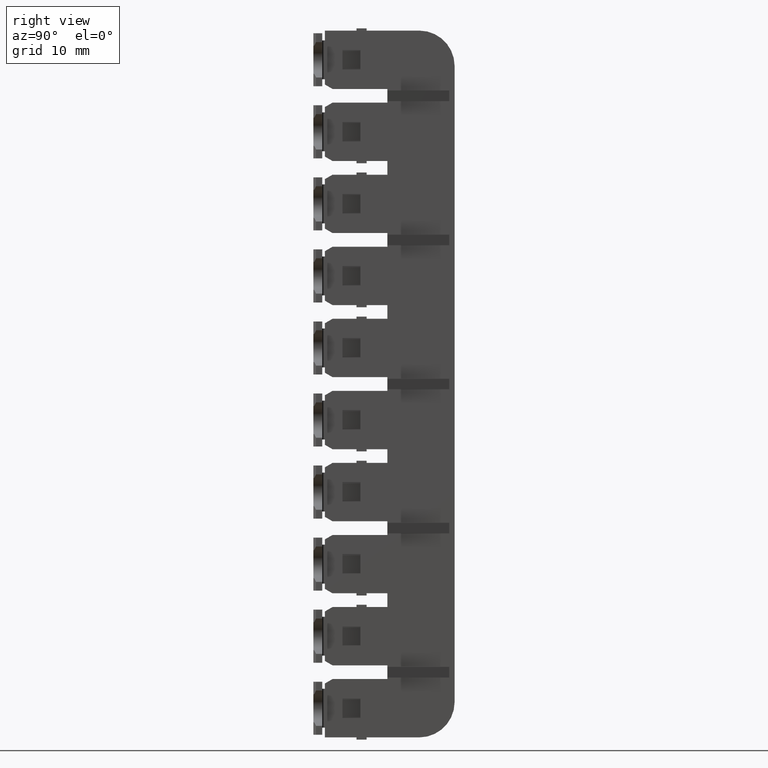
[diagram: clean part render]
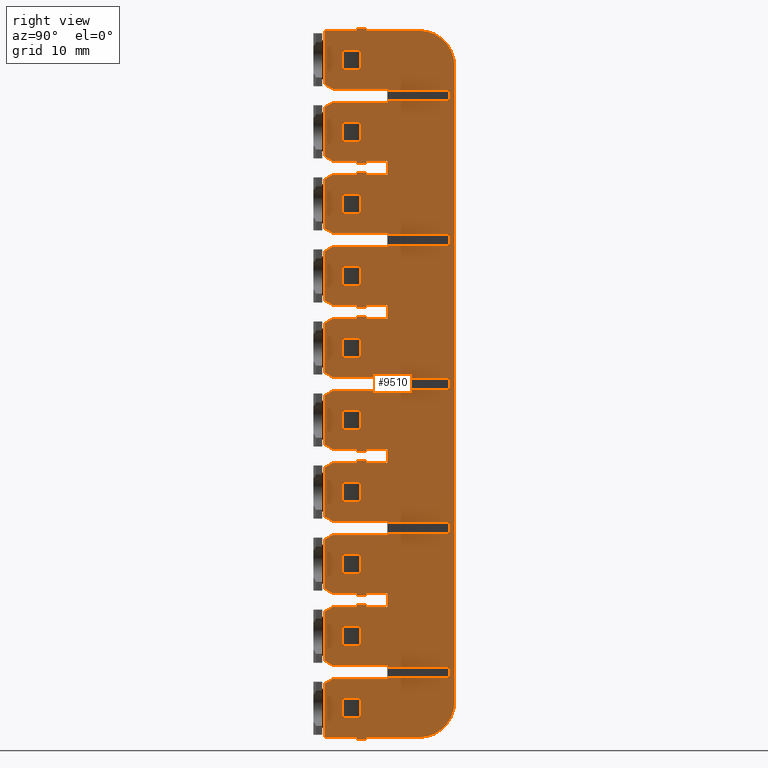
[diagram: same view with one face highlighted and labeled with its STEP entity id]
A machine part, right view. The second image highlights one B-rep face of the part: STEP entity #9510.
In plain terms, the highlighted planar face has unit normal (-1, -0, 0).
Its self-contained STEP definition (entity closure, byte-faithful):
#6 = LINE ( 'NONE', #31, #5444 ) ;
#7 = CARTESIAN_POINT ( 'NONE',  ( 1555.045209356660100, 1084.259529724810100, -27.44999999999999900 ) ) ;
#8 = CARTESIAN_POINT ( 'NONE',  ( 1555.045209356660100, 1082.259529724810100, -27.44999999999999900 ) ) ;
#10 = DIRECTION ( 'NONE',  ( 0.0000000000000000000, 1.000000000000000000, 0.0000000000000000000 ) ) ;
#12 = LINE ( 'NONE', #7, #5474 ) ;
#13 = DIRECTION ( 'NONE',  ( 0.0000000000000000000, 0.0000000000000000000, 1.000000000000000000 ) ) ;
#19 = LINE ( 'NONE', #8, #5476 ) ;
#20 = DIRECTION ( 'NONE',  ( 0.0000000000000000000, -1.000000000000000000, 0.0000000000000000000 ) ) ;
#26 = CARTESIAN_POINT ( 'NONE',  ( 1555.045209356660100, 1084.259529724810100, -3.000000000000000000 ) ) ;
#28 = LINE ( 'NONE', #26, #5443 ) ;
#29 = DIRECTION ( 'NONE',  ( 0.0000000000000000000, 1.000000000000000000, 0.0000000000000000000 ) ) ;
#30 = LINE ( 'NONE', #38, #5449 ) ;
#31 = CARTESIAN_POINT ( 'NONE',  ( 1555.045209356660100, 1082.259529724810100, -51.89999999999999900 ) ) ;
#32 = DIRECTION ( 'NONE',  ( -6.500666239303620300E-015, 0.0000000000000000000, -1.000000000000000000 ) ) ;
#34 = CARTESIAN_POINT ( 'NONE',  ( 1555.045209356660100, 1082.259529724810100, -13.35000000000000100 ) ) ;
#35 = LINE ( 'NONE', #34, #5457 ) ;
#38 = CARTESIAN_POINT ( 'NONE',  ( 1555.045209356660100, 1084.259529724810100, -45.94999999999999600 ) ) ;
#41 = LINE ( 'NONE', #53, #5497 ) ;
#43 = DIRECTION ( 'NONE',  ( 0.0000000000000000000, 0.0000000000000000000, 1.000000000000000000 ) ) ;
#44 = LINE ( 'NONE', #96, #5442 ) ;
#46 = LINE ( 'NONE', #48, #5458 ) ;
#48 = CARTESIAN_POINT ( 'NONE',  ( 1555.045209356660100, 1082.259529724810100, -21.50000000000000000 ) ) ;
#49 = DIRECTION ( 'NONE',  ( 0.0000000000000000000, 1.000000000000000000, 0.0000000000000000000 ) ) ;
#52 = DIRECTION ( 'NONE',  ( 0.0000000000000000000, 1.000000000000000000, 0.0000000000000000000 ) ) ;
#53 = CARTESIAN_POINT ( 'NONE',  ( 1555.045209356660100, 1084.259529724810100, -11.15000000000000000 ) ) ;
#54 = LINE ( 'NONE', #123, #5475 ) ;
#55 = DIRECTION ( 'NONE',  ( 0.0000000000000000000, -1.000000000000000000, 0.0000000000000000000 ) ) ;
#56 = LINE ( 'NONE', #57, #5463 ) ;
#57 = CARTESIAN_POINT ( 'NONE',  ( 1555.045209356660100, 1082.259529724810100, -5.200000000000000200 ) ) ;
#58 = LINE ( 'NONE', #66, #5461 ) ;
#63 = CARTESIAN_POINT ( 'NONE',  ( 1555.045209356660100, 1084.259529724810100, 5.150000000000000400 ) ) ;
#66 = CARTESIAN_POINT ( 'NONE',  ( 1555.045209356660100, 1082.259529724810100, -37.79999999999999700 ) ) ;
#69 = DIRECTION ( 'NONE',  ( 0.0000000000000000000, 0.0000000000000000000, 1.000000000000000000 ) ) ;
#70 = LINE ( 'NONE', #71, #5440 ) ;
#71 = CARTESIAN_POINT ( 'NONE',  ( 1555.045209356660100, 1084.259529724810100, -54.10000000000000100 ) ) ;
#72 = DIRECTION ( 'NONE',  ( -6.500666239303620300E-015, 0.0000000000000000000, -1.000000000000000000 ) ) ;
#73 = DIRECTION ( 'NONE',  ( 0.0000000000000000000, 0.0000000000000000000, 1.000000000000000000 ) ) ;
#74 = LINE ( 'NONE', #63, #5438 ) ;
#80 = DIRECTION ( 'NONE',  ( -6.500666239303620300E-015, 0.0000000000000000000, -1.000000000000000000 ) ) ;
#83 = LINE ( 'NONE', #121, #8700 ) ;
#88 = LINE ( 'NONE', #105, #5451 ) ;
#90 = LINE ( 'NONE', #92, #5469 ) ;
#91 = LINE ( 'NONE', #94, #5487 ) ;
#92 = CARTESIAN_POINT ( 'NONE',  ( 1555.045209356660100, 1084.259529724810100, -37.79999999999999700 ) ) ;
#94 = CARTESIAN_POINT ( 'NONE',  ( 1555.045209356660100, 1087.334526901996000, -15.72500000000000000 ) ) ;
#96 = CARTESIAN_POINT ( 'NONE',  ( 1555.045209356660100, 1082.259529724810100, -54.10000000000000100 ) ) ;
#97 = DIRECTION ( 'NONE',  ( -3.538835890992820600E-015, 1.000000000000000000, -4.081702296415930000E-014 ) ) ;
#98 = DIRECTION ( 'NONE',  ( 0.0000000000000000000, -1.000000000000000000, 0.0000000000000000000 ) ) ;
#100 = LINE ( 'NONE', #102, #5439 ) ;
#102 = CARTESIAN_POINT ( 'NONE',  ( 1555.045209356660100, 1082.259529724810100, -35.60000000000000100 ) ) ;
#103 = DIRECTION ( 'NONE',  ( 0.0000000000000000000, 1.000000000000000000, 0.0000000000000000000 ) ) ;
#105 = CARTESIAN_POINT ( 'NONE',  ( 1555.045209356660100, 1082.259529724810100, -68.20000000000000300 ) ) ;
#106 = CARTESIAN_POINT ( 'NONE',  ( 1555.045209356660100, 1087.334526901996000, -0.6500000000000000200 ) ) ;
#108 = DIRECTION ( 'NONE',  ( -6.500666239303620300E-015, 0.0000000000000000000, -1.000000000000000000 ) ) ;
#110 = LINE ( 'NONE', #172, #5481 ) ;
#115 = LINE ( 'NONE', #146, #5480 ) ;
#117 = DIRECTION ( 'NONE',  ( 0.0000000000000000000, 1.000000000000000000, 0.0000000000000000000 ) ) ;
#119 = LINE ( 'NONE', #106, #5445 ) ;
#121 = CARTESIAN_POINT ( 'NONE',  ( 1555.045209356660100, 1084.834526901990100, -23.95000000000029800 ) ) ;
#123 = CARTESIAN_POINT ( 'NONE',  ( 1555.045209356660100, 1084.259529724810100, -62.25000000000000000 ) ) ;
#124 = DIRECTION ( 'NONE',  ( -3.538835890992685300E-015, 1.000000000000000000, -1.096746120592191800E-016 ) ) ;
#134 = CARTESIAN_POINT ( 'NONE',  ( 1555.045209356660100, 1082.259529724810100, -43.75000000000000000 ) ) ;
#138 = DIRECTION ( 'NONE',  ( 0.0000000000000000000, 1.000000000000000000, 0.0000000000000000000 ) ) ;
#139 = DIRECTION ( 'NONE',  ( 0.0000000000000000000, 1.000000000000000000, 0.0000000000000000000 ) ) ;
#144 = CARTESIAN_POINT ( 'NONE',  ( 1555.045209356660100, 1084.259529724810100, -70.40000000000000600 ) ) ;
#146 = CARTESIAN_POINT ( 'NONE',  ( 1555.045209356660100, 1082.259529724810100, -70.40000000000000600 ) ) ;
#147 = CARTESIAN_POINT ( 'NONE',  ( 1555.045209356660100, 1084.259529724810100, -19.30000000000000100 ) ) ;
#148 = DIRECTION ( 'NONE',  ( 3.190924781433425100E-015, -2.521813793386575100E-016, 1.000000000000000000 ) ) ;
#150 = CARTESIAN_POINT ( 'NONE',  ( 1555.045209356660100, 1084.984526901990000, -40.09999999618660400 ) ) ;
#152 = CARTESIAN_POINT ( 'NONE',  ( 1555.045209356660100, 1082.259529724810100, 2.949999999999999700 ) ) ;
#153 = DIRECTION ( 'NONE',  ( 0.0000000000000000000, -1.000000000000000000, 0.0000000000000000000 ) ) ;
#154 = LINE ( 'NONE', #144, #5499 ) ;
#157 = DIRECTION ( 'NONE',  ( 0.0000000000000000000, 0.0000000000000000000, 1.000000000000000000 ) ) ;
#163 = DIRECTION ( 'NONE',  ( 0.0000000000000000000, -1.000000000000000000, 0.0000000000000000000 ) ) ;
#164 = LINE ( 'NONE', #147, #5507 ) ;
#166 = LINE ( 'NONE', #152, #5510 ) ;
#168 = LINE ( 'NONE', #134, #5498 ) ;
#172 = CARTESIAN_POINT ( 'NONE',  ( 1555.045209356660100, 1082.259529724810100, -19.30000000000000100 ) ) ;
#173 = DIRECTION ( 'NONE',  ( -6.500666239303620300E-015, 0.0000000000000000000, -1.000000000000000000 ) ) ;
#176 = CARTESIAN_POINT ( 'NONE',  ( 1555.045209356660100, 1084.984526901990000, -41.75838112322975300 ) ) ;
#183 = DIRECTION ( 'NONE',  ( 3.250333119651810100E-015, 1.150239550150604000E-029, 1.000000000000000000 ) ) ;
#186 = LINE ( 'NONE', #176, #8659 ) ;
#188 = DIRECTION ( 'NONE',  ( 3.250333119651810100E-015, 1.150239550150604000E-029, 1.000000000000000000 ) ) ;
#228 = LINE ( 'NONE', #292, #8651 ) ;
#257 = LINE ( 'NONE', #297, #8680 ) ;
#260 = DIRECTION ( 'NONE',  ( 3.538835890992605600E-015, -1.000000000000000000, -2.449021377849560200E-014 ) ) ;
#269 = DIRECTION ( 'NONE',  ( 3.250333119651810100E-015, 1.150239550150604000E-029, 1.000000000000000000 ) ) ;
#292 = CARTESIAN_POINT ( 'NONE',  ( 1555.045209356660100, 1084.834526901990100, -41.29999998855930000 ) ) ;
#297 = CARTESIAN_POINT ( 'NONE',  ( 1555.045209356660100, 1084.984526901990000, -7.222733697611890800 ) ) ;
#304 = LINE ( 'NONE', #486, #8641 ) ;
#405 = LINE ( 'NONE', #412, #8640 ) ;
#412 = CARTESIAN_POINT ( 'NONE',  ( 1555.045209356660100, 1084.984526901990000, -58.02726629094770100 ) ) ;
#421 = DIRECTION ( 'NONE',  ( 3.250333119651810100E-015, 1.150239550150604000E-029, 1.000000000000000000 ) ) ;
#480 = DIRECTION ( 'NONE',  ( -3.250333119651810100E-015, -1.150239550150604000E-029, -1.000000000000000000 ) ) ;
#485 = LINE ( 'NONE', #495, #8682 ) ;
#486 = CARTESIAN_POINT ( 'NONE',  ( 1555.045209356660100, 1083.834526901990100, -7.500000003813779500 ) ) ;
#490 = LINE ( 'NONE', #514, #8746 ) ;
#495 = CARTESIAN_POINT ( 'NONE',  ( 1555.045209356660100, 1083.984526901990200, -40.24999999618660200 ) ) ;
#497 = DIRECTION ( 'NONE',  ( -3.538835890992900600E-015, 1.000000000000000000, -6.530723674265489300E-014 ) ) ;
#498 = LINE ( 'NONE', #501, #8672 ) ;
#500 = DIRECTION ( 'NONE',  ( 3.538835890992820600E-015, -1.000000000000000000, 4.081702296415930000E-014 ) ) ;
#501 = CARTESIAN_POINT ( 'NONE',  ( 1555.045209356660100, 1083.984526901990200, -8.699999996186491600 ) ) ;
#509 = CARTESIAN_POINT ( 'NONE',  ( 1555.045209356660100, 1084.984526901990000, -25.14999999237300100 ) ) ;
#514 = CARTESIAN_POINT ( 'NONE',  ( 1555.045209356660100, 1083.834526901990100, -25.43693338865000100 ) ) ;
#519 = DIRECTION ( 'NONE',  ( -3.250333119651810100E-015, -1.150239550150604000E-029, -1.000000000000000000 ) ) ;
#522 = LINE ( 'NONE', #541, #8758 ) ;
#523 = DIRECTION ( 'NONE',  ( 3.250333119651810100E-015, 1.150239550150604000E-029, 1.000000000000000000 ) ) ;
#531 = LINE ( 'NONE', #509, #8731 ) ;
#535 = LINE ( 'NONE', #552, #8743 ) ;
#536 = LINE ( 'NONE', #560, #8729 ) ;
#541 = CARTESIAN_POINT ( 'NONE',  ( 1555.045209356660100, 1083.834526901990100, -57.74999998474579900 ) ) ;
#543 = CARTESIAN_POINT ( 'NONE',  ( 1555.045209356660100, 1084.984526901990000, -56.39999999237299700 ) ) ;
#544 = LINE ( 'NONE', #543, #8707 ) ;
#546 = DIRECTION ( 'NONE',  ( -3.250333119651810100E-015, -1.150239550150604000E-029, -1.000000000000000000 ) ) ;
#547 = DIRECTION ( 'NONE',  ( 3.250333119651810100E-015, 1.150239550150604000E-029, 1.000000000000000000 ) ) ;
#548 = LINE ( 'NONE', #554, #8753 ) ;
#549 = DIRECTION ( 'NONE',  ( 3.538835890992790600E-015, -1.000000000000000000, 3.265361837132745300E-014 ) ) ;
#552 = CARTESIAN_POINT ( 'NONE',  ( 1555.045209356660100, 1082.259529724810100, -19.30000000000000100 ) ) ;
#554 = CARTESIAN_POINT ( 'NONE',  ( 1555.045209356660100, 1083.984526901990200, -24.99999999237289900 ) ) ;
#556 = DIRECTION ( 'NONE',  ( 0.0000000000000000000, 0.0000000000000000000, -1.000000000000000000 ) ) ;
#557 = LINE ( 'NONE', #559, #8708 ) ;
#559 = CARTESIAN_POINT ( 'NONE',  ( 1555.045209356660100, 1082.259529724810100, -37.79999999999999700 ) ) ;
#560 = CARTESIAN_POINT ( 'NONE',  ( 1555.045209356660100, 1084.834526901990100, -57.59999998474580000 ) ) ;
#562 = DIRECTION ( 'NONE',  ( 6.500666239303620300E-015, 0.0000000000000000000, 1.000000000000000000 ) ) ;
#568 = CARTESIAN_POINT ( 'NONE',  ( 1555.045209356660100, 1083.834526901990100, -39.81306659990955400 ) ) ;
#575 = LINE ( 'NONE', #568, #8754 ) ;
#576 = DIRECTION ( 'NONE',  ( 3.538835890992950300E-015, -1.000000000000000000, 8.163404592831860000E-014 ) ) ;
#580 = LINE ( 'NONE', #150, #8650 ) ;
#583 = DIRECTION ( 'NONE',  ( -3.309741457870194800E-015, -2.521813793386575100E-016, -1.000000000000000000 ) ) ;
#585 = LINE ( 'NONE', #622, #5448 ) ;
#586 = DIRECTION ( 'NONE',  ( -3.309741457870194800E-015, -2.521813793386575100E-016, -1.000000000000000000 ) ) ;
#588 = LINE ( 'NONE', #592, #5496 ) ;
#589 = DIRECTION ( 'NONE',  ( 0.0000000000000000000, -1.000000000000000000, 0.0000000000000000000 ) ) ;
#591 = LINE ( 'NONE', #605, #5490 ) ;
#592 = CARTESIAN_POINT ( 'NONE',  ( 1555.045209356660100, 1087.334526901996000, -33.22499999999999400 ) ) ;
#593 = CARTESIAN_POINT ( 'NONE',  ( 1555.045209356660100, 1082.259529724810100, 5.150000000000000400 ) ) ;
#594 = LINE ( 'NONE', #621, #5455 ) ;
#595 = CARTESIAN_POINT ( 'NONE',  ( 1555.045209356660100, 1087.334526901996000, -48.14999999999999900 ) ) ;
#598 = DIRECTION ( 'NONE',  ( 0.0000000000000000000, -1.000000000000000000, 0.0000000000000000000 ) ) ;
#600 = LINE ( 'NONE', #595, #5441 ) ;
#601 = DIRECTION ( 'NONE',  ( 0.0000000000000000000, 1.000000000000000000, 0.0000000000000000000 ) ) ;
#602 = LINE ( 'NONE', #620, #5486 ) ;
#605 = CARTESIAN_POINT ( 'NONE',  ( 1555.045209356660100, 1087.334526901996000, -49.70000000000000300 ) ) ;
#606 = LINE ( 'NONE', #593, #5452 ) ;
#608 = DIRECTION ( 'NONE',  ( 3.190924781433425100E-015, -2.521813793387425100E-016, 1.000000000000000000 ) ) ;
#610 = LINE ( 'NONE', #626, #5462 ) ;
#612 = DIRECTION ( 'NONE',  ( 0.0000000000000000000, -1.000000000000000000, 0.0000000000000000000 ) ) ;
#613 = CARTESIAN_POINT ( 'NONE',  ( 1555.045209356664800, 1080.259529724810100, -42.04999999999999700 ) ) ;
#616 = DIRECTION ( 'NONE',  ( -1.547721872706970800E-015, 0.8660254037844383700, 0.5000000000000003300 ) ) ;
#619 = CARTESIAN_POINT ( 'NONE',  ( 1555.045209356660100, 1082.259529724810100, -60.04999999999999700 ) ) ;
#620 = CARTESIAN_POINT ( 'NONE',  ( 1555.045209356660100, 1082.259529724810100, -29.64999999999999900 ) ) ;
#621 = CARTESIAN_POINT ( 'NONE',  ( 1555.045209356660100, 1082.259529724810100, -45.94999999999999600 ) ) ;
#622 = CARTESIAN_POINT ( 'NONE',  ( 1555.045209356660100, 1082.259529724810100, -11.15000000000000000 ) ) ;
#623 = DIRECTION ( 'NONE',  ( 0.0000000000000000000, -1.000000000000000000, 0.0000000000000000000 ) ) ;
#624 = DIRECTION ( 'NONE',  ( -3.538835890992685300E-015, 1.000000000000000000, 1.096746120592421900E-016 ) ) ;
#625 = DIRECTION ( 'NONE',  ( 0.0000000000000000000, 1.000000000000000000, 0.0000000000000000000 ) ) ;
#626 = CARTESIAN_POINT ( 'NONE',  ( 1555.045209356660100, 1082.259529724810100, -62.25000000000000000 ) ) ;
#874 = CARTESIAN_POINT ( 'NONE',  ( 1555.045209356660100, 1082.259529724810100, -62.25000000000000000 ) ) ;
#898 = CARTESIAN_POINT ( 'NONE',  ( 1555.045209356660100, 1084.984526901990000, -23.69999999999999900 ) ) ;
#928 = CARTESIAN_POINT ( 'NONE',  ( 1555.045209356660100, 1084.984526901990000, -41.54999999999999700 ) ) ;
#929 = CARTESIAN_POINT ( 'NONE',  ( 1555.045209356659800, 1084.984526901990000, -41.29999998855929300 ) ) ;
#932 = CARTESIAN_POINT ( 'NONE',  ( 1555.045209356660100, 1083.834526901990100, -57.85000000000000100 ) ) ;
#933 = CARTESIAN_POINT ( 'NONE',  ( 1555.045209356660100, 1084.984526901990000, -8.699999996186528900 ) ) ;
#934 = CARTESIAN_POINT ( 'NONE',  ( 1555.045209356660100, 1082.259529724810100, -60.04999999999999700 ) ) ;
#936 = CARTESIAN_POINT ( 'NONE',  ( 1555.045209356660100, 1083.834526901990100, -40.00000000000000000 ) ) ;
#942 = CARTESIAN_POINT ( 'NONE',  ( 1555.045209356659800, 1083.834526901990100, -56.54999999237308800 ) ) ;
#945 = CARTESIAN_POINT ( 'NONE',  ( 1555.045209356660100, 1083.834526901990100, -7.650000003813852700 ) ) ;
#949 = CARTESIAN_POINT ( 'NONE',  ( 1555.045209356660100, 1082.259529724810100, -45.94999999999999600 ) ) ;
#952 = CARTESIAN_POINT ( 'NONE',  ( 1555.045209356660100, 1082.259529724810100, -70.40000000000000600 ) ) ;
#953 = CARTESIAN_POINT ( 'NONE',  ( 1555.045209356660100, 1087.334526901996000, -56.30000000000000400 ) ) ;
#954 = CARTESIAN_POINT ( 'NONE',  ( 1555.045209356660100, 1082.259529724810100, -51.89999999999999900 ) ) ;
#956 = CARTESIAN_POINT ( 'NONE',  ( 1555.045209356660100, 1082.259529724810100, -43.75000000000000000 ) ) ;
#960 = CARTESIAN_POINT ( 'NONE',  ( 1555.045209356660100, 1084.984526901990000, -72.60000000000000900 ) ) ;
#962 = CARTESIAN_POINT ( 'NONE',  ( 1555.045209356660100, 1082.259529724810100, -21.50000000000000000 ) ) ;
#967 = CARTESIAN_POINT ( 'NONE',  ( 1555.045209356659800, 1083.834526901990100, -57.59999998474575700 ) ) ;
#968 = CARTESIAN_POINT ( 'NONE',  ( 1555.045209356660100, 1082.259529724810100, -35.60000000000000100 ) ) ;
#969 = CARTESIAN_POINT ( 'NONE',  ( 1555.045209356660100, 1083.834526901990100, -24.99999999237288500 ) ) ;
#970 = CARTESIAN_POINT ( 'NONE',  ( 1555.045209356660100, 1083.834526901990100, -8.949999999999999300 ) ) ;
#972 = CARTESIAN_POINT ( 'NONE',  ( 1555.045209356660100, 1084.984526901990000, -7.400000000000000400 ) ) ;
#973 = CARTESIAN_POINT ( 'NONE',  ( 1555.045209356660100, 1082.259529724810100, -54.10000000000000100 ) ) ;
#974 = CARTESIAN_POINT ( 'NONE',  ( 1555.045209356659800, 1084.984526901990000, -57.59999998474578600 ) ) ;
#976 = CARTESIAN_POINT ( 'NONE',  ( 1555.045209356660100, 1082.259529724810100, -19.30000000000000100 ) ) ;
#977 = CARTESIAN_POINT ( 'NONE',  ( 1555.045209356660100, 1084.984526901990000, -57.85000000000000100 ) ) ;
#979 = CARTESIAN_POINT ( 'NONE',  ( 1555.045209356660100, 1084.984526901990000, -7.650000003813855400 ) ) ;
#998 = CARTESIAN_POINT ( 'NONE',  ( 1555.045209356660100, 1084.984526901990000, -23.95000000000030100 ) ) ;
#999 = CARTESIAN_POINT ( 'NONE',  ( 1555.045209356660100, 1083.834526901990100, -23.69999999999999900 ) ) ;
#1003 = CARTESIAN_POINT ( 'NONE',  ( 1555.045209356660100, 1083.834526901990100, -23.95000000000025500 ) ) ;
#1004 = CARTESIAN_POINT ( 'NONE',  ( 1555.045209356660100, 1084.984526901990000, -40.00000000000000000 ) ) ;
#1006 = CARTESIAN_POINT ( 'NONE',  ( 1555.045209356660100, 1084.984526901990000, -8.949999999999999300 ) ) ;
#1007 = CARTESIAN_POINT ( 'NONE',  ( 1555.045209356660100, 1084.984526901990000, -24.99999999237298100 ) ) ;
#1008 = CARTESIAN_POINT ( 'NONE',  ( 1555.045209356660100, 1083.834526901990100, -7.400000000000000400 ) ) ;
#1009 = CARTESIAN_POINT ( 'NONE',  ( 1555.045209356660100, 1083.834526901990100, -25.25000000000000000 ) ) ;
#1012 = CARTESIAN_POINT ( 'NONE',  ( 1555.045209356660100, 1087.334526901996000, -41.54999999999999700 ) ) ;
#1015 = CARTESIAN_POINT ( 'NONE',  ( 1555.045209356660100, 1087.334526901996000, -25.25000000000000000 ) ) ;
#1021 = CARTESIAN_POINT ( 'NONE',  ( 1555.045209356660100, 1084.984526901990000, -25.25000000000000000 ) ) ;
#1026 = CARTESIAN_POINT ( 'NONE',  ( 1555.045209356664800, 1081.125555128594000, -57.85000000000000100 ) ) ;
#1027 = CARTESIAN_POINT ( 'NONE',  ( 1555.045209356660100, 1084.984526901990000, -56.30000000000000400 ) ) ;
#1029 = CARTESIAN_POINT ( 'NONE',  ( 1555.045209356660100, 1083.834526901990100, -41.54999999999999700 ) ) ;
#1032 = CARTESIAN_POINT ( 'NONE',  ( 1555.045209356660100, 1083.834526901990100, -8.699999996186480900 ) ) ;
#1033 = CARTESIAN_POINT ( 'NONE',  ( 1555.045209356660100, 1082.259529724810100, -37.79999999999999700 ) ) ;
#1034 = CARTESIAN_POINT ( 'NONE',  ( 1555.045209356659800, 1084.984526901990000, -40.24999999618665200 ) ) ;
#1035 = CARTESIAN_POINT ( 'NONE',  ( 1555.045209356660100, 1083.834526901990100, -56.30000000000000400 ) ) ;
#1039 = CARTESIAN_POINT ( 'NONE',  ( 1555.045209356659800, 1090.934526901996200, -72.60000000000000900 ) ) ;
#1044 = CARTESIAN_POINT ( 'NONE',  ( 1555.045209356660100, 1082.259529724810100, -68.20000000000000300 ) ) ;
#1046 = CARTESIAN_POINT ( 'NONE',  ( 1555.045209356659800, 1083.834526901990100, -40.24999999618658800 ) ) ;
#1049 = CARTESIAN_POINT ( 'NONE',  ( 1555.045209356664800, 1081.125555128594000, -7.400000000000000400 ) ) ;
#1050 = CARTESIAN_POINT ( 'NONE',  ( 1555.045209356660100, 1090.934526901996200, 7.349999999999990800 ) ) ;
#1057 = CARTESIAN_POINT ( 'NONE',  ( 1555.045209356659800, 1083.834526901990100, -41.29999998855932100 ) ) ;
#1058 = CARTESIAN_POINT ( 'NONE',  ( 1555.045209356664800, 1081.125555128594000, -8.949999999999999300 ) ) ;
#1061 = CARTESIAN_POINT ( 'NONE',  ( 1555.045209356659800, 1084.984526901990000, -56.54999999237306700 ) ) ;
#1080 = CARTESIAN_POINT ( 'NONE',  ( 1555.045209356660100, 1084.984526901990000, 7.349999999999990800 ) ) ;
#1082 = CARTESIAN_POINT ( 'NONE',  ( 1555.045209356660100, 1087.334526901996000, -23.69999999999999900 ) ) ;
#1084 = CARTESIAN_POINT ( 'NONE',  ( 1555.045209356664800, 1081.125555128594000, -40.00000000000000000 ) ) ;
#1397 = LINE ( 'NONE', #1461, #5400 ) ;
#1409 = LINE ( 'NONE', #1474, #5409 ) ;
#1434 = LINE ( 'NONE', #1473, #5397 ) ;
#1439 = DIRECTION ( 'NONE',  ( 3.663735981263015800E-015, -1.000000000000000000, 1.096746120592179900E-016 ) ) ;
#1440 = DIRECTION ( 'NONE',  ( -3.250333119651810100E-015, 2.521813793387420200E-016, -1.000000000000000000 ) ) ;
#1441 = DIRECTION ( 'NONE',  ( 3.663735981263015800E-015, -1.000000000000000000, -1.096746120591567900E-016 ) ) ;
#1442 = LINE ( 'NONE', #1451, #5412 ) ;
#1443 = DIRECTION ( 'NONE',  ( -4.798054992358783100E-015, 0.8660254037844383700, -0.5000000000000003300 ) ) ;
#1444 = LINE ( 'NONE', #1448, #5434 ) ;
#1445 = CARTESIAN_POINT ( 'NONE',  ( 1555.045209356660100, 1080.434526901995900, -8.949999999999999300 ) ) ;
#1446 = CARTESIAN_POINT ( 'NONE',  ( 1555.045209356664800, 1080.259529724810100, -25.39999999999999900 ) ) ;
#1447 = LINE ( 'NONE', #1445, #5386 ) ;
#1448 = CARTESIAN_POINT ( 'NONE',  ( 1555.045209356664800, 1080.259529724810100, -47.64999999999999900 ) ) ;
#1449 = LINE ( 'NONE', #1446, #5387 ) ;
#1450 = LINE ( 'NONE', #1476, #5398 ) ;
#1451 = CARTESIAN_POINT ( 'NONE',  ( 1555.045209356664800, 1080.259529724810100, -50.20000000000000300 ) ) ;
#1452 = CARTESIAN_POINT ( 'NONE',  ( 1555.045209356660100, 1080.434526901995900, -7.400000000000000400 ) ) ;
#1453 = DIRECTION ( 'NONE',  ( -4.798054992358783100E-015, 0.8660254037844383700, -0.5000000000000003300 ) ) ;
#1454 = LINE ( 'NONE', #1455, #5429 ) ;
#1455 = CARTESIAN_POINT ( 'NONE',  ( 1555.045209356660100, 1080.434526901995900, -48.14999999999999900 ) ) ;
#1457 = DIRECTION ( 'NONE',  ( -3.309741457870194800E-015, -2.521813793387425100E-016, -1.000000000000000000 ) ) ;
#1458 = DIRECTION ( 'NONE',  ( -1.547721872706970800E-015, 0.8660254037844383700, 0.5000000000000003300 ) ) ;
#1459 = DIRECTION ( 'NONE',  ( 1.547721872706975700E-015, -0.8660254037844383700, -0.5000000000000003300 ) ) ;
#1460 = DIRECTION ( 'NONE',  ( 3.190924781433425100E-015, -2.521813793386575100E-016, 1.000000000000000000 ) ) ;
#1461 = CARTESIAN_POINT ( 'NONE',  ( 1555.045209356664800, 1080.259529724810100, -39.50000000000000000 ) ) ;
#1462 = CARTESIAN_POINT ( 'NONE',  ( 1555.045209356664800, 1080.259529724810100, -6.899999999999999500 ) ) ;
#1463 = LINE ( 'NONE', #1480, #5422 ) ;
#1464 = LINE ( 'NONE', #1468, #5393 ) ;
#1465 = LINE ( 'NONE', #1503, #5390 ) ;
#1466 = DIRECTION ( 'NONE',  ( -3.538835890992685300E-015, 1.000000000000000000, 1.074615391438522500E-029 ) ) ;
#1467 = LINE ( 'NONE', #1479, #5401 ) ;
#1468 = CARTESIAN_POINT ( 'NONE',  ( 1555.045209356660100, 1080.434526901995900, 0.7500000000000000000 ) ) ;
#1469 = LINE ( 'NONE', #1470, #5396 ) ;
#1470 = CARTESIAN_POINT ( 'NONE',  ( 1555.045209356660100, 1087.334526901996000, -49.52499999999999900 ) ) ;
#1471 = DIRECTION ( 'NONE',  ( -3.538835890992685300E-015, 1.000000000000000000, 1.096746120592421900E-016 ) ) ;
#1472 = DIRECTION ( 'NONE',  ( -3.663735981263015800E-015, 1.000000000000000000, -4.682231220490079100E-017 ) ) ;
#1473 = CARTESIAN_POINT ( 'NONE',  ( 1555.045209356664800, 1080.259529724810100, -58.35000000000000100 ) ) ;
#1474 = CARTESIAN_POINT ( 'NONE',  ( 1555.045209356660100, 1094.334526901996000, -32.09999999999999400 ) ) ;
#1475 = LINE ( 'NONE', #1462, #5373 ) ;
#1476 = CARTESIAN_POINT ( 'NONE',  ( 1555.045209356664800, 1080.259529724810100, -17.60000000000000100 ) ) ;
#1477 = DIRECTION ( 'NONE',  ( 1.547721872706975700E-015, -0.8660254037844383700, -0.5000000000000003300 ) ) ;
#1478 = LINE ( 'NONE', #1452, #5404 ) ;
#1479 = CARTESIAN_POINT ( 'NONE',  ( 1555.045209356660100, 1087.334526901996000, -17.10000000000000100 ) ) ;
#1480 = CARTESIAN_POINT ( 'NONE',  ( 1555.045209356660100, 1094.334526901996000, -0.5500000000000000400 ) ) ;
#1481 = LINE ( 'NONE', #1508, #5426 ) ;
#1482 = CARTESIAN_POINT ( 'NONE',  ( 1555.045209356659800, 1094.934526901996200, -72.60000000000000900 ) ) ;
#1483 = DIRECTION ( 'NONE',  ( 4.798054992358794100E-015, -0.8660254037844383700, 0.5000000000000003300 ) ) ;
#1484 = LINE ( 'NONE', #1482, #5399 ) ;
#1485 = DIRECTION ( 'NONE',  ( 3.190924781433425100E-015, -2.521813793386575100E-016, 1.000000000000000000 ) ) ;
#1486 = LINE ( 'NONE', #1489, #5413 ) ;
#1487 = DIRECTION ( 'NONE',  ( -3.250333119651810100E-015, 2.521813793386570200E-016, -1.000000000000000000 ) ) ;
#1488 = DIRECTION ( 'NONE',  ( -4.798054992358783100E-015, 0.8660254037844383700, -0.5000000000000003300 ) ) ;
#1489 = CARTESIAN_POINT ( 'NONE',  ( 1555.045209356664800, 1080.259529724810100, -31.35000000000000100 ) ) ;
#1490 = LINE ( 'NONE', #1505, #5424 ) ;
#1491 = LINE ( 'NONE', #1492, #5414 ) ;
#1492 = CARTESIAN_POINT ( 'NONE',  ( 1555.045209356660100, 1087.334526901996000, -31.85000000000000500 ) ) ;
#1493 = CARTESIAN_POINT ( 'NONE',  ( 1555.045209356664800, 1080.259529724810100, -33.89999999999999900 ) ) ;
#1494 = DIRECTION ( 'NONE',  ( 3.250333119651810100E-015, 2.521813793386570200E-016, 1.000000000000000000 ) ) ;
#1495 = DIRECTION ( 'NONE',  ( -3.309741457870194800E-015, -2.521813793387425100E-016, -1.000000000000000000 ) ) ;
#1496 = DIRECTION ( 'NONE',  ( 4.798054992358794100E-015, -0.8660254037844383700, 0.5000000000000003300 ) ) ;
#1497 = LINE ( 'NONE', #1504, #5410 ) ;
#1498 = LINE ( 'NONE', #1509, #5415 ) ;
#1499 = DIRECTION ( 'NONE',  ( 3.190924781433425100E-015, -2.521813793386575100E-016, 1.000000000000000000 ) ) ;
#1500 = DIRECTION ( 'NONE',  ( -3.309741457870194800E-015, -2.521813793387425100E-016, -1.000000000000000000 ) ) ;
#1501 = DIRECTION ( 'NONE',  ( -1.547721872706970800E-015, 0.8660254037844383700, 0.5000000000000003300 ) ) ;
#1502 = CARTESIAN_POINT ( 'NONE',  ( 1555.045209356660100, 1087.334526901996000, -33.39999999999999900 ) ) ;
#1503 = CARTESIAN_POINT ( 'NONE',  ( 1555.045209356660100, 1080.434526901995900, -40.00000000000000000 ) ) ;
#1504 = CARTESIAN_POINT ( 'NONE',  ( 1555.045209356664800, 1080.259529724810100, -9.099999999999999600 ) ) ;
#1505 = CARTESIAN_POINT ( 'NONE',  ( 1555.045209356664800, 1080.259529724810100, -55.80000000000000400 ) ) ;
#1506 = LINE ( 'NONE', #1514, #5407 ) ;
#1507 = DIRECTION ( 'NONE',  ( 3.190924781433425100E-015, -2.521813793387425100E-016, 1.000000000000000000 ) ) ;
#1508 = CARTESIAN_POINT ( 'NONE',  ( 1555.045209356660100, 1087.334526901996000, -25.10000000000000100 ) ) ;
#1509 = CARTESIAN_POINT ( 'NONE',  ( 1555.045209356664800, 1080.259529724810100, -56.14999999999999900 ) ) ;
#1510 = LINE ( 'NONE', #1532, #5405 ) ;
#1511 = DIRECTION ( 'NONE',  ( -3.309741457870194800E-015, -2.521813793387425100E-016, -1.000000000000000000 ) ) ;
#1512 = CARTESIAN_POINT ( 'NONE',  ( 1555.045209356660100, 1087.334526901996000, -8.800000000000000700 ) ) ;
#1513 = CARTESIAN_POINT ( 'NONE',  ( 1555.045209356664800, 1080.259529724810100, -23.55000000000000100 ) ) ;
#1514 = CARTESIAN_POINT ( 'NONE',  ( 1555.045209356660100, 1087.334526901996000, -15.54999999999999900 ) ) ;
#1515 = CARTESIAN_POINT ( 'NONE',  ( 1555.045209356664800, 1080.259529724810100, 7.200000000000000200 ) ) ;
#1516 = DIRECTION ( 'NONE',  ( -3.250333119651810100E-015, 2.521813793386570200E-016, -1.000000000000000000 ) ) ;
#1517 = DIRECTION ( 'NONE',  ( 3.190924781433425100E-015, -2.521813793386575100E-016, 1.000000000000000000 ) ) ;
#1518 = LINE ( 'NONE', #1502, #5379 ) ;
#1519 = CARTESIAN_POINT ( 'NONE',  ( 1555.045209356664800, 1080.259529724810100, -9.449999999999999300 ) ) ;
#1520 = LINE ( 'NONE', #1512, #5416 ) ;
#1521 = LINE ( 'NONE', #1515, #5375 ) ;
#1522 = DIRECTION ( 'NONE',  ( 3.663735981263015800E-015, -1.000000000000000000, -1.096746120592417900E-016 ) ) ;
#1523 = LINE ( 'NONE', #1525, #5417 ) ;
#1524 = DIRECTION ( 'NONE',  ( 3.250333119651810100E-015, 2.521813793387420200E-016, 1.000000000000000000 ) ) ;
#1525 = CARTESIAN_POINT ( 'NONE',  ( 1555.045209356660100, 1087.334526901996000, -65.82499999999998900 ) ) ;
#1526 = LINE ( 'NONE', #1493, #5411 ) ;
#1527 = DIRECTION ( 'NONE',  ( 1.547721872706975700E-015, -0.8660254037844383700, -0.5000000000000003300 ) ) ;
#1528 = LINE ( 'NONE', #1574, #5421 ) ;
#1529 = LINE ( 'NONE', #1542, #5394 ) ;
#1530 = LINE ( 'NONE', #1519, #5427 ) ;
#1531 = LINE ( 'NONE', #1513, #5436 ) ;
#1532 = CARTESIAN_POINT ( 'NONE',  ( 1555.045209356660100, 1094.334526901996000, -15.80000000000000100 ) ) ;
#1533 = DIRECTION ( 'NONE',  ( 3.663735981263015800E-015, -1.000000000000000000, -1.096746120591567900E-016 ) ) ;
#1535 = CARTESIAN_POINT ( 'NONE',  ( 1555.045209356660100, 1087.334526901996000, -0.8000000000000000400 ) ) ;
#1536 = LINE ( 'NONE', #1558, #5383 ) ;
#1537 = LINE ( 'NONE', #1535, #5423 ) ;
#1538 = LINE ( 'NONE', #1549, #5430 ) ;
#1539 = LINE ( 'NONE', #1548, #5419 ) ;
#1541 = LINE ( 'NONE', #1565, #5385 ) ;
#1542 = CARTESIAN_POINT ( 'NONE',  ( 1555.045209356664800, 1080.259529724810100, -15.04999999999999900 ) ) ;
#1543 = LINE ( 'NONE', #1555, #5420 ) ;
#1544 = DIRECTION ( 'NONE',  ( 3.663735981263015800E-015, -1.000000000000000000, 1.096746120592179900E-016 ) ) ;
#1545 = DIRECTION ( 'NONE',  ( -3.538835890992685300E-015, 1.000000000000000000, 1.096746120591573800E-016 ) ) ;
#1546 = DIRECTION ( 'NONE',  ( 3.190924781433425100E-015, -2.521813793386575100E-016, 1.000000000000000000 ) ) ;
#1547 = LINE ( 'NONE', #1552, #5431 ) ;
#1548 = CARTESIAN_POINT ( 'NONE',  ( 1555.045209356664800, 1080.259529724810100, -41.70000000000000300 ) ) ;
#1549 = CARTESIAN_POINT ( 'NONE',  ( 1555.045209356664800, 1080.259529724810100, -39.84999999999999400 ) ) ;
#1550 = DIRECTION ( 'NONE',  ( 0.0000000000000000000, -1.000000000000000000, 0.0000000000000000000 ) ) ;
#1551 = DIRECTION ( 'NONE',  ( -3.538835890992685300E-015, 1.000000000000000000, -1.096746120591343800E-016 ) ) ;
#1552 = CARTESIAN_POINT ( 'NONE',  ( 1555.045209356660100, 1082.259529724810100, -3.000000000000000000 ) ) ;
#1553 = LINE ( 'NONE', #1573, #5435 ) ;
#1554 = DIRECTION ( 'NONE',  ( -3.250333119651810100E-015, 2.521813793387420200E-016, -1.000000000000000000 ) ) ;
#1555 = CARTESIAN_POINT ( 'NONE',  ( 1555.045209356660100, 1080.434526901995900, -25.25000000000000000 ) ) ;
#1557 = DIRECTION ( 'NONE',  ( 3.250333119651810100E-015, 2.521813793387420200E-016, 1.000000000000000000 ) ) ;
#1558 = CARTESIAN_POINT ( 'NONE',  ( 1555.045209356660100, 1080.434526901995900, -15.54999999999999900 ) ) ;
#1559 = DIRECTION ( 'NONE',  ( -3.538835890992685300E-015, 1.000000000000000000, -1.096746120591343800E-016 ) ) ;
#1560 = DIRECTION ( 'NONE',  ( 4.798054992358794100E-015, -0.8660254037844383700, 0.5000000000000003300 ) ) ;
#1561 = DIRECTION ( 'NONE',  ( 3.663735981263015800E-015, -1.000000000000000000, -1.096746120592417900E-016 ) ) ;
#1563 = DIRECTION ( 'NONE',  ( -3.538835890992685300E-015, 1.000000000000000000, -1.096746120592191800E-016 ) ) ;
#1564 = DIRECTION ( 'NONE',  ( -3.663735981263015800E-015, 1.000000000000000000, -4.682231220498579100E-017 ) ) ;
#1565 = CARTESIAN_POINT ( 'NONE',  ( 1555.045209356660100, 1080.434526901995900, -0.8000000000000000400 ) ) ;
#1566 = LINE ( 'NONE', #1577, #5402 ) ;
#1567 = LINE ( 'NONE', #1568, #5425 ) ;
#1568 = CARTESIAN_POINT ( 'NONE',  ( 1555.045209356660100, 1087.334526901996000, -48.32500000000000300 ) ) ;
#1569 = LINE ( 'NONE', #1578, #5403 ) ;
#1570 = LINE ( 'NONE', #1591, #5395 ) ;
#1571 = DIRECTION ( 'NONE',  ( -3.663735981263015800E-015, 1.000000000000000000, 4.682231220492459300E-017 ) ) ;
#1573 = CARTESIAN_POINT ( 'NONE',  ( 1555.045209356660100, 1087.334526901996000, 0.5749999999999999600 ) ) ;
#1574 = CARTESIAN_POINT ( 'NONE',  ( 1555.045209356660100, 1087.334526901996000, -0.6250000000000000000 ) ) ;
#1577 = CARTESIAN_POINT ( 'NONE',  ( 1555.045209356660100, 1080.434526901995900, -56.30000000000000400 ) ) ;
#1578 = CARTESIAN_POINT ( 'NONE',  ( 1555.045209356660100, 1087.334526901996000, -32.02499999999999900 ) ) ;
#1579 = DIRECTION ( 'NONE',  ( -3.663735981263015800E-015, 1.000000000000000000, 4.682231220500959200E-017 ) ) ;
#1580 = LINE ( 'NONE', #1596, #5384 ) ;
#1581 = LINE ( 'NONE', #1586, #5380 ) ;
#1582 = CARTESIAN_POINT ( 'NONE',  ( 1555.045209356660100, 1080.434526901995900, -33.39999999999999900 ) ) ;
#1583 = CARTESIAN_POINT ( 'NONE',  ( 1555.045209356660100, 1080.434526901995900, -31.85000000000000500 ) ) ;
#1584 = LINE ( 'NONE', #1582, #5388 ) ;
#1586 = CARTESIAN_POINT ( 'NONE',  ( 1555.045209356660100, 1080.434526901995900, -41.54999999999999700 ) ) ;
#1587 = LINE ( 'NONE', #1589, #5406 ) ;
#1589 = CARTESIAN_POINT ( 'NONE',  ( 1555.045209356660100, 1080.434526901995900, -49.70000000000000300 ) ) ;
#1590 = DIRECTION ( 'NONE',  ( -3.663735981263015800E-015, 1.000000000000000000, 4.682231220492459300E-017 ) ) ;
#1591 = CARTESIAN_POINT ( 'NONE',  ( 1555.045209356660100, 1080.434526901995900, -17.10000000000000100 ) ) ;
#1592 = LINE ( 'NONE', #1609, #5374 ) ;
#1593 = DIRECTION ( 'NONE',  ( -3.538835890992685300E-015, 1.000000000000000000, 1.096746120591573800E-016 ) ) ;
#1594 = DIRECTION ( 'NONE',  ( -3.663735981263015800E-015, 1.000000000000000000, 4.682231220500959200E-017 ) ) ;
#1595 = LINE ( 'NONE', #1606, #5382 ) ;
#1596 = CARTESIAN_POINT ( 'NONE',  ( 1555.045209356660100, 1080.434526901995900, -23.69999999999999900 ) ) ;
#1597 = LINE ( 'NONE', #1616, #5432 ) ;
#1598 = LINE ( 'NONE', #1614, #5377 ) ;
#1599 = LINE ( 'NONE', #613, #5485 ) ;
#1600 = DIRECTION ( 'NONE',  ( -3.309741457870194800E-015, -2.521813793386575100E-016, -1.000000000000000000 ) ) ;
#1601 = LINE ( 'NONE', #1604, #5381 ) ;
#1602 = DIRECTION ( 'NONE',  ( 3.663735981263015800E-015, -1.000000000000000000, -1.096746120591567900E-016 ) ) ;
#1603 = CARTESIAN_POINT ( 'NONE',  ( 1555.045209356664800, 1080.259529724810100, -1.300000000000000000 ) ) ;
#1604 = CARTESIAN_POINT ( 'NONE',  ( 1555.045209356664800, 1080.259529724810100, -25.75000000000000000 ) ) ;
#1605 = DIRECTION ( 'NONE',  ( -1.547721872706970800E-015, 0.8660254037844383700, 0.5000000000000003300 ) ) ;
#1606 = CARTESIAN_POINT ( 'NONE',  ( 1555.045209356660100, 1094.334526901996000, -48.39999999999999900 ) ) ;
#1607 = LINE ( 'NONE', #619, #5472 ) ;
#1608 = LINE ( 'NONE', #1603, #5378 ) ;
#1609 = CARTESIAN_POINT ( 'NONE',  ( 1555.045209356660100, 1087.334526901996000, -16.92500000000000100 ) ) ;
#1610 = DIRECTION ( 'NONE',  ( -4.798054992358783100E-015, 0.8660254037844383700, -0.5000000000000003300 ) ) ;
#1611 = DIRECTION ( 'NONE',  ( 3.663735981263015800E-015, -1.000000000000000000, 1.096746120591329900E-016 ) ) ;
#1612 = LINE ( 'NONE', #1583, #5433 ) ;
#1613 = DIRECTION ( 'NONE',  ( -3.663735981263015800E-015, 1.000000000000000000, -4.682231220498579100E-017 ) ) ;
#1614 = CARTESIAN_POINT ( 'NONE',  ( 1555.045209356664800, 1080.259529724810100, -23.19999999999999900 ) ) ;
#1615 = DIRECTION ( 'NONE',  ( 1.547721872706975700E-015, -0.8660254037844383700, -0.5000000000000003300 ) ) ;
#1616 = CARTESIAN_POINT ( 'NONE',  ( 1555.045209356660100, 1087.334526901996000, -40.14999999999999900 ) ) ;
#1617 = DIRECTION ( 'NONE',  ( -3.538835890992685300E-015, 1.000000000000000000, 1.096746120591573800E-016 ) ) ;
#2074 = VERTEX_POINT ( 'NONE', #11916 ) ;
#2077 = VERTEX_POINT ( 'NONE', #11940 ) ;
#2078 = VERTEX_POINT ( 'NONE', #11878 ) ;
#2082 = VERTEX_POINT ( 'NONE', #11879 ) ;
#2084 = VERTEX_POINT ( 'NONE', #11939 ) ;
#2089 = VERTEX_POINT ( 'NONE', #11958 ) ;
#2090 = VERTEX_POINT ( 'NONE', #11932 ) ;
#2093 = VERTEX_POINT ( 'NONE', #11947 ) ;
#2094 = VERTEX_POINT ( 'NONE', #11914 ) ;
#2095 = VERTEX_POINT ( 'NONE', #11938 ) ;
#2096 = VERTEX_POINT ( 'NONE', #11943 ) ;
#2097 = VERTEX_POINT ( 'NONE', #11922 ) ;
#2099 = VERTEX_POINT ( 'NONE', #11963 ) ;
#2100 = VERTEX_POINT ( 'NONE', #11933 ) ;
#2102 = VERTEX_POINT ( 'NONE', #11917 ) ;
#2103 = VERTEX_POINT ( 'NONE', #11949 ) ;
#2105 = VERTEX_POINT ( 'NONE', #11941 ) ;
#2106 = VERTEX_POINT ( 'NONE', #11955 ) ;
#2110 = VERTEX_POINT ( 'NONE', #11925 ) ;
#2111 = VERTEX_POINT ( 'NONE', #11918 ) ;
#2114 = VERTEX_POINT ( 'NONE', #11965 ) ;
#2115 = VERTEX_POINT ( 'NONE', #11910 ) ;
#2116 = VERTEX_POINT ( 'NONE', #11934 ) ;
#2119 = VERTEX_POINT ( 'NONE', #11960 ) ;
#2121 = VERTEX_POINT ( 'NONE', #11948 ) ;
#2129 = VERTEX_POINT ( 'NONE', #11961 ) ;
#2130 = VERTEX_POINT ( 'NONE', #11935 ) ;
#2131 = VERTEX_POINT ( 'NONE', #11945 ) ;
#2135 = VERTEX_POINT ( 'NONE', #11946 ) ;
#2137 = VERTEX_POINT ( 'NONE', #11919 ) ;
#2139 = VERTEX_POINT ( 'NONE', #11921 ) ;
#2140 = VERTEX_POINT ( 'NONE', #11951 ) ;
#2141 = VERTEX_POINT ( 'NONE', #11952 ) ;
#2142 = VERTEX_POINT ( 'NONE', #11923 ) ;
#2143 = VERTEX_POINT ( 'NONE', #11953 ) ;
#2144 = VERTEX_POINT ( 'NONE', #11924 ) ;
#2145 = VERTEX_POINT ( 'NONE', #11926 ) ;
#2146 = VERTEX_POINT ( 'NONE', #11954 ) ;
#2147 = VERTEX_POINT ( 'NONE', #11927 ) ;
#2148 = VERTEX_POINT ( 'NONE', #11956 ) ;
#2149 = VERTEX_POINT ( 'NONE', #11957 ) ;
#2150 = VERTEX_POINT ( 'NONE', #11986 ) ;
#2151 = VERTEX_POINT ( 'NONE', #12028 ) ;
#2153 = VERTEX_POINT ( 'NONE', #12021 ) ;
#2154 = VERTEX_POINT ( 'NONE', #12017 ) ;
#2155 = VERTEX_POINT ( 'NONE', #12019 ) ;
#2157 = VERTEX_POINT ( 'NONE', #11991 ) ;
#2159 = VERTEX_POINT ( 'NONE', #12004 ) ;
#2160 = VERTEX_POINT ( 'NONE', #12011 ) ;
#2161 = VERTEX_POINT ( 'NONE', #11984 ) ;
#2162 = VERTEX_POINT ( 'NONE', #12016 ) ;
#2163 = VERTEX_POINT ( 'NONE', #12014 ) ;
#2165 = VERTEX_POINT ( 'NONE', #11969 ) ;
#2168 = VERTEX_POINT ( 'NONE', #12015 ) ;
#2169 = VERTEX_POINT ( 'NONE', #12026 ) ;
#2171 = VERTEX_POINT ( 'NONE', #11968 ) ;
#2172 = VERTEX_POINT ( 'NONE', #11973 ) ;
#2173 = VERTEX_POINT ( 'NONE', #11979 ) ;
#2174 = VERTEX_POINT ( 'NONE', #12024 ) ;
#2175 = VERTEX_POINT ( 'NONE', #12005 ) ;
#2176 = VERTEX_POINT ( 'NONE', #11974 ) ;
#2177 = VERTEX_POINT ( 'NONE', #11977 ) ;
#2178 = VERTEX_POINT ( 'NONE', #11978 ) ;
#2179 = VERTEX_POINT ( 'NONE', #11980 ) ;
#2180 = VERTEX_POINT ( 'NONE', #12012 ) ;
#2181 = VERTEX_POINT ( 'NONE', #11985 ) ;
#2182 = VERTEX_POINT ( 'NONE', #12003 ) ;
#2183 = VERTEX_POINT ( 'NONE', #11975 ) ;
#2184 = VERTEX_POINT ( 'NONE', #11999 ) ;
#2185 = VERTEX_POINT ( 'NONE', #11981 ) ;
#2186 = VERTEX_POINT ( 'NONE', #11971 ) ;
#2187 = VERTEX_POINT ( 'NONE', #11997 ) ;
#2188 = VERTEX_POINT ( 'NONE', #12007 ) ;
#2189 = VERTEX_POINT ( 'NONE', #11967 ) ;
#2190 = VERTEX_POINT ( 'NONE', #12029 ) ;
#2192 = VERTEX_POINT ( 'NONE', #11990 ) ;
#2193 = VERTEX_POINT ( 'NONE', #12027 ) ;
#2194 = VERTEX_POINT ( 'NONE', #12030 ) ;
#2195 = VERTEX_POINT ( 'NONE', #11995 ) ;
#2196 = VERTEX_POINT ( 'NONE', #11970 ) ;
#2197 = VERTEX_POINT ( 'NONE', #11992 ) ;
#2203 = VERTEX_POINT ( 'NONE', #11989 ) ;
#2206 = VERTEX_POINT ( 'NONE', #11994 ) ;
#2209 = VERTEX_POINT ( 'NONE', #12000 ) ;
#2211 = VERTEX_POINT ( 'NONE', #12008 ) ;
#2213 = VERTEX_POINT ( 'NONE', #12013 ) ;
#2214 = VERTEX_POINT ( 'NONE', #12088 ) ;
#2224 = VERTEX_POINT ( 'NONE', #12042 ) ;
#2227 = VERTEX_POINT ( 'NONE', #12079 ) ;
#2231 = VERTEX_POINT ( 'NONE', #12090 ) ;
#2240 = VERTEX_POINT ( 'NONE', #12036 ) ;
#2242 = VERTEX_POINT ( 'NONE', #12038 ) ;
#2246 = VERTEX_POINT ( 'NONE', #12068 ) ;
#2249 = VERTEX_POINT ( 'NONE', #12040 ) ;
#2252 = VERTEX_POINT ( 'NONE', #12060 ) ;
#2257 = VERTEX_POINT ( 'NONE', #12061 ) ;
#2695 = VERTEX_POINT ( 'NONE', #874 ) ;
#2704 = VERTEX_POINT ( 'NONE', #898 ) ;
#2715 = VERTEX_POINT ( 'NONE', #968 ) ;
#2717 = VERTEX_POINT ( 'NONE', #949 ) ;
#2719 = VERTEX_POINT ( 'NONE', #945 ) ;
#2722 = VERTEX_POINT ( 'NONE', #979 ) ;
#2723 = VERTEX_POINT ( 'NONE', #956 ) ;
#2724 = VERTEX_POINT ( 'NONE', #969 ) ;
#2735 = VERTEX_POINT ( 'NONE', #933 ) ;
#2739 = VERTEX_POINT ( 'NONE', #972 ) ;
#2740 = VERTEX_POINT ( 'NONE', #976 ) ;
#2742 = VERTEX_POINT ( 'NONE', #973 ) ;
#2749 = VERTEX_POINT ( 'NONE', #970 ) ;
#2750 = VERTEX_POINT ( 'NONE', #962 ) ;
#2751 = VERTEX_POINT ( 'NONE', #952 ) ;
#2752 = VERTEX_POINT ( 'NONE', #942 ) ;
#2755 = VERTEX_POINT ( 'NONE', #960 ) ;
#2760 = VERTEX_POINT ( 'NONE', #967 ) ;
#2761 = VERTEX_POINT ( 'NONE', #974 ) ;
#2762 = VERTEX_POINT ( 'NONE', #928 ) ;
#2763 = VERTEX_POINT ( 'NONE', #934 ) ;
#2765 = VERTEX_POINT ( 'NONE', #977 ) ;
#2766 = VERTEX_POINT ( 'NONE', #929 ) ;
#2767 = VERTEX_POINT ( 'NONE', #936 ) ;
#2768 = VERTEX_POINT ( 'NONE', #953 ) ;
#2769 = VERTEX_POINT ( 'NONE', #932 ) ;
#2772 = VERTEX_POINT ( 'NONE', #954 ) ;
#2774 = VERTEX_POINT ( 'NONE', #1021 ) ;
#2775 = VERTEX_POINT ( 'NONE', #1033 ) ;
#2779 = VERTEX_POINT ( 'NONE', #1029 ) ;
#2780 = VERTEX_POINT ( 'NONE', #1004 ) ;
#2781 = VERTEX_POINT ( 'NONE', #1046 ) ;
#2783 = VERTEX_POINT ( 'NONE', #1039 ) ;
#2784 = VERTEX_POINT ( 'NONE', #1035 ) ;
#2786 = VERTEX_POINT ( 'NONE', #1027 ) ;
#2787 = VERTEX_POINT ( 'NONE', #1009 ) ;
#2792 = VERTEX_POINT ( 'NONE', #1034 ) ;
#2795 = VERTEX_POINT ( 'NONE', #1006 ) ;
#2796 = VERTEX_POINT ( 'NONE', #1003 ) ;
#2803 = VERTEX_POINT ( 'NONE', #1026 ) ;
#2806 = VERTEX_POINT ( 'NONE', #998 ) ;
#2807 = VERTEX_POINT ( 'NONE', #1044 ) ;
#2810 = VERTEX_POINT ( 'NONE', #999 ) ;
#2811 = VERTEX_POINT ( 'NONE', #1008 ) ;
#2813 = VERTEX_POINT ( 'NONE', #1007 ) ;
#2814 = VERTEX_POINT ( 'NONE', #1032 ) ;
#2821 = VERTEX_POINT ( 'NONE', #1012 ) ;
#2833 = VERTEX_POINT ( 'NONE', #1015 ) ;
#2842 = VERTEX_POINT ( 'NONE', #1049 ) ;
#2857 = VERTEX_POINT ( 'NONE', #1080 ) ;
#2864 = VERTEX_POINT ( 'NONE', #1050 ) ;
#2865 = VERTEX_POINT ( 'NONE', #1084 ) ;
#2866 = VERTEX_POINT ( 'NONE', #1061 ) ;
#2869 = VERTEX_POINT ( 'NONE', #1057 ) ;
#2871 = VERTEX_POINT ( 'NONE', #1082 ) ;
#2874 = VERTEX_POINT ( 'NONE', #1058 ) ;
#3185 = AXIS2_PLACEMENT_3D ( 'NONE', #10037, #10101, #10121 ) ;
#3944 = LINE ( 'NONE', #3957, #8884 ) ;
#3948 = CARTESIAN_POINT ( 'NONE',  ( 1555.045209356660100, 1083.984526901990200, 7.599999999999999600 ) ) ;
#3949 = LINE ( 'NONE', #3985, #8030 ) ;
#3950 = DIRECTION ( 'NONE',  ( 3.538835890993000400E-015, -1.000000000000000000, 9.694042953987839800E-014 ) ) ;
#3951 = DIRECTION ( 'NONE',  ( 3.250333119651810100E-015, 2.521813793386570200E-016, 1.000000000000000000 ) ) ;
#3952 = DIRECTION ( 'NONE',  ( 3.250333119651810100E-015, 2.521813793386570200E-016, 1.000000000000000000 ) ) ;
#3957 = CARTESIAN_POINT ( 'NONE',  ( 1555.045209356664800, 1080.259529724810100, -72.59999999999999400 ) ) ;
#3966 = LINE ( 'NONE', #3969, #8872 ) ;
#3968 = LINE ( 'NONE', #3948, #8887 ) ;
#3969 = CARTESIAN_POINT ( 'NONE',  ( 1555.045209356664800, 1080.259529724810100, -72.45000000000000300 ) ) ;
#3973 = CARTESIAN_POINT ( 'NONE',  ( 1555.045209356660100, 1083.834526901990100, 6.987659522654049700 ) ) ;
#3974 = LINE ( 'NONE', #3986, #8006 ) ;
#3975 = DIRECTION ( 'NONE',  ( 0.0000000000000000000, -1.000000000000000000, 0.0000000000000000000 ) ) ;
#3977 = DIRECTION ( 'NONE',  ( 3.663735981263015800E-015, -1.000000000000000000, 1.096746120591329900E-016 ) ) ;
#3979 = LINE ( 'NONE', #3990, #8011 ) ;
#3981 = DIRECTION ( 'NONE',  ( -3.250333119651810100E-015, -1.150239550150604000E-029, -1.000000000000000000 ) ) ;
#3985 = CARTESIAN_POINT ( 'NONE',  ( 1555.045209356664800, 1080.259529724810100, 1.250000000000000000 ) ) ;
#3986 = CARTESIAN_POINT ( 'NONE',  ( 1555.045209356660100, 1084.984526901990000, 7.449999999999840300 ) ) ;
#3987 = DIRECTION ( 'NONE',  ( -3.250333119651810100E-015, 2.521813793386570200E-016, -1.000000000000000000 ) ) ;
#3989 = DIRECTION ( 'NONE',  ( -1.547721872706970800E-015, 0.8660254037844383700, 0.5000000000000003300 ) ) ;
#3990 = CARTESIAN_POINT ( 'NONE',  ( 1555.045209356664800, 1080.259529724810100, -66.50000000000000000 ) ) ;
#3991 = LINE ( 'NONE', #4001, #8012 ) ;
#3993 = DIRECTION ( 'NONE',  ( -4.798054992358783100E-015, 0.8660254037844383700, -0.5000000000000003300 ) ) ;
#3995 = CARTESIAN_POINT ( 'NONE',  ( 1555.045209356659800, 1090.934526901996200, -68.60000000000000900 ) ) ;
#3998 = DIRECTION ( 'NONE',  ( 3.250333119651810100E-015, 1.150239550150604000E-029, 1.000000000000000000 ) ) ;
#4001 = CARTESIAN_POINT ( 'NONE',  ( 1555.045209356664800, 1080.259529724810100, 7.349999999999999600 ) ) ;
#4005 = LINE ( 'NONE', #4011, #8008 ) ;
#4006 = LINE ( 'NONE', #4015, #8010 ) ;
#4007 = CARTESIAN_POINT ( 'NONE',  ( 1555.045209356660100, 1083.984526901990200, -72.84999998855950300 ) ) ;
#4009 = DIRECTION ( 'NONE',  ( 1.000000000000000000, 3.538835890992685300E-015, -3.250333119651810100E-015 ) ) ;
#4010 = DIRECTION ( 'NONE',  ( -3.538835890992420600E-015, 1.000000000000000000, 8.163404592831870100E-014 ) ) ;
#4011 = CARTESIAN_POINT ( 'NONE',  ( 1555.045209356660100, 1087.334526901996000, -64.62500000000000000 ) ) ;
#4012 = LINE ( 'NONE', #3973, #8003 ) ;
#4013 = DIRECTION ( 'NONE',  ( -3.538835890992685300E-015, 1.000000000000000000, -1.096746120591343800E-016 ) ) ;
#4014 = LINE ( 'NONE', #4007, #8025 ) ;
#4015 = CARTESIAN_POINT ( 'NONE',  ( 1555.045209356660100, 1087.334526901996000, -64.60000000000000900 ) ) ;
#4016 = LINE ( 'NONE', #4017, #8014 ) ;
#4017 = CARTESIAN_POINT ( 'NONE',  ( 1555.045209356660100, 1080.434526901995900, -57.85000000000000100 ) ) ;
#4020 = LINE ( 'NONE', #4028, #8023 ) ;
#4024 = DIRECTION ( 'NONE',  ( -3.309741457870194800E-015, -2.521813793386575100E-016, -1.000000000000000000 ) ) ;
#4027 = DIRECTION ( 'NONE',  ( -3.309741457870194800E-015, -2.521813793386575100E-016, -1.000000000000000000 ) ) ;
#4028 = CARTESIAN_POINT ( 'NONE',  ( 1555.045209356660100, 1084.984526901990000, -72.69999998855939800 ) ) ;
#4033 = DIRECTION ( 'NONE',  ( 0.0000000000000000000, -1.000000000000000000, 0.0000000000000000000 ) ) ;
#4035 = DIRECTION ( 'NONE',  ( 1.000000000000000000, 3.538835890992685300E-015, -3.250333119651810100E-015 ) ) ;
#4046 = DIRECTION ( 'NONE',  ( 4.798054992358794100E-015, -0.8660254037844383700, 0.5000000000000003300 ) ) ;
#4047 = CARTESIAN_POINT ( 'NONE',  ( 1555.045209356660100, 1090.934526901996200, 3.349999999999991200 ) ) ;
#4052 = LINE ( 'NONE', #4058, #8028 ) ;
#4055 = DIRECTION ( 'NONE',  ( 3.250333119651810100E-015, 1.150239550150604000E-029, 1.000000000000000000 ) ) ;
#4056 = LINE ( 'NONE', #4062, #7999 ) ;
#4058 = CARTESIAN_POINT ( 'NONE',  ( 1555.045209356664800, 1080.259529724810100, -63.95000000000001000 ) ) ;
#4062 = CARTESIAN_POINT ( 'NONE',  ( 1555.045209356660100, 1087.334526901996000, -56.45000000000000300 ) ) ;
#4069 = LINE ( 'NONE', #4100, #8080 ) ;
#4075 = CARTESIAN_POINT ( 'NONE',  ( 1555.045209356660100, 1094.334526901996000, -64.69999999999998900 ) ) ;
#4082 = DIRECTION ( 'NONE',  ( -3.309741457870194800E-015, -2.521813793386575100E-016, -1.000000000000000000 ) ) ;
#4083 = CARTESIAN_POINT ( 'NONE',  ( 1555.045209356660100, 1083.834526901990100, -72.23765951121359300 ) ) ;
#4086 = LINE ( 'NONE', #4092, #8074 ) ;
#4087 = LINE ( 'NONE', #4083, #8058 ) ;
#4088 = CARTESIAN_POINT ( 'NONE',  ( 1555.045209356660100, 1087.334526901996000, -64.44999999999998900 ) ) ;
#4089 = DIRECTION ( 'NONE',  ( -3.250333119651810100E-015, -1.150239550150604000E-029, -1.000000000000000000 ) ) ;
#4092 = CARTESIAN_POINT ( 'NONE',  ( 1555.045209356660100, 1080.434526901995900, -66.00000000000000000 ) ) ;
#4095 = DIRECTION ( 'NONE',  ( -3.309741457870194800E-015, -2.521813793386575100E-016, -1.000000000000000000 ) ) ;
#4098 = LINE ( 'NONE', #4075, #8070 ) ;
#4099 = DIRECTION ( 'NONE',  ( -3.663735981263015800E-015, 1.000000000000000000, -4.682231220490079100E-017 ) ) ;
#4100 = CARTESIAN_POINT ( 'NONE',  ( 1555.045209356660100, 1080.434526901995900, -64.44999999999998900 ) ) ;
#4106 = LINE ( 'NONE', #4088, #8077 ) ;
#4113 = LINE ( 'NONE', #4117, #8091 ) ;
#4117 = CARTESIAN_POINT ( 'NONE',  ( 1555.045209356660100, 1094.934526901996200, 7.349999999999999600 ) ) ;
#4125 = DIRECTION ( 'NONE',  ( 3.538835890992685300E-015, -1.000000000000000000, -1.225863708862687000E-029 ) ) ;
#4136 = CARTESIAN_POINT ( 'NONE',  ( 1555.045209356660100, 1094.934526901996200, 7.349999999999990800 ) ) ;
#4149 = LINE ( 'NONE', #4136, #8034 ) ;
#4150 = DIRECTION ( 'NONE',  ( 3.663735981263015800E-015, -1.000000000000000000, 1.096746120591329900E-016 ) ) ;
#4157 = DIRECTION ( 'NONE',  ( -3.250333119651810100E-015, -1.946166082738415700E-032, -1.000000000000000000 ) ) ;
#4625 = LINE ( 'NONE', #4626, #8820 ) ;
#4626 = CARTESIAN_POINT ( 'NONE',  ( 1555.045209356660100, 1083.834526901990100, -56.08436288956350800 ) ) ;
#4627 = DIRECTION ( 'NONE',  ( -3.250333119651810100E-015, -1.150239550150604000E-029, -1.000000000000000000 ) ) ;
#4637 = DIRECTION ( 'NONE',  ( -3.538835890992605600E-015, 1.000000000000000000, 2.449021377849560200E-014 ) ) ;
#4640 = LINE ( 'NONE', #4641, #8785 ) ;
#4641 = CARTESIAN_POINT ( 'NONE',  ( 1555.045209356660100, 1083.984526901990200, -56.54999999237310200 ) ) ;
#4671 = CARTESIAN_POINT ( 'NONE',  ( 1555.045209356660100, 1080.434526901995900, -57.85000000000000100 ) ) ;
#4675 = LINE ( 'NONE', #4671, #8781 ) ;
#4676 = DIRECTION ( 'NONE',  ( 3.663735981263015800E-015, -1.000000000000000000, 1.096746120591329900E-016 ) ) ;
#4679 = CARTESIAN_POINT ( 'NONE',  ( 1555.045209356660100, 1080.434526901995900, -56.30000000000000400 ) ) ;
#4683 = LINE ( 'NONE', #4679, #8767 ) ;
#4685 = DIRECTION ( 'NONE',  ( 3.663735981263015800E-015, -1.000000000000000000, -1.096746120592417900E-016 ) ) ;
#4688 = LINE ( 'NONE', #4699, #8844 ) ;
#4699 = CARTESIAN_POINT ( 'NONE',  ( 1555.045209356660100, 1080.434526901995900, -40.00000000000000000 ) ) ;
#4700 = DIRECTION ( 'NONE',  ( 3.663735981263015800E-015, -1.000000000000000000, -1.096746120592417900E-016 ) ) ;
#5135 = VECTOR ( 'NONE', #12518, 1000.000000000000000 ) ;
#5373 = VECTOR ( 'NONE', #1453, 1000.000000000000100 ) ;
#5374 = VECTOR ( 'NONE', #1593, 1000.000000000000000 ) ;
#5375 = VECTOR ( 'NONE', #1516, 1000.000000000000000 ) ;
#5377 = VECTOR ( 'NONE', #1610, 1000.000000000000100 ) ;
#5378 = VECTOR ( 'NONE', #1615, 1000.000000000000100 ) ;
#5379 = VECTOR ( 'NONE', #1507, 1000.000000000000000 ) ;
#5380 = VECTOR ( 'NONE', #1611, 1000.000000000000000 ) ;
#5381 = VECTOR ( 'NONE', #1605, 1000.000000000000100 ) ;
#5382 = VECTOR ( 'NONE', #583, 1000.000000000000000 ) ;
#5383 = VECTOR ( 'NONE', #1564, 1000.000000000000000 ) ;
#5384 = VECTOR ( 'NONE', #1602, 1000.000000000000000 ) ;
#5385 = VECTOR ( 'NONE', #1571, 1000.000000000000000 ) ;
#5386 = VECTOR ( 'NONE', #1439, 1000.000000000000000 ) ;
#5387 = VECTOR ( 'NONE', #1440, 1000.000000000000000 ) ;
#5388 = VECTOR ( 'NONE', #1579, 1000.000000000000000 ) ;
#5390 = VECTOR ( 'NONE', #1522, 1000.000000000000000 ) ;
#5393 = VECTOR ( 'NONE', #1441, 1000.000000000000000 ) ;
#5394 = VECTOR ( 'NONE', #1560, 1000.000000000000100 ) ;
#5395 = VECTOR ( 'NONE', #1590, 1000.000000000000000 ) ;
#5396 = VECTOR ( 'NONE', #1471, 1000.000000000000000 ) ;
#5397 = VECTOR ( 'NONE', #1458, 1000.000000000000100 ) ;
#5398 = VECTOR ( 'NONE', #1459, 1000.000000000000100 ) ;
#5399 = VECTOR ( 'NONE', #1466, 1000.000000000000000 ) ;
#5400 = VECTOR ( 'NONE', #1443, 1000.000000000000100 ) ;
#5401 = VECTOR ( 'NONE', #1460, 1000.000000000000000 ) ;
#5402 = VECTOR ( 'NONE', #1561, 1000.000000000000000 ) ;
#5403 = VECTOR ( 'NONE', #1563, 1000.000000000000000 ) ;
#5404 = VECTOR ( 'NONE', #1533, 1000.000000000000000 ) ;
#5405 = VECTOR ( 'NONE', #1511, 1000.000000000000000 ) ;
#5406 = VECTOR ( 'NONE', #1594, 1000.000000000000000 ) ;
#5407 = VECTOR ( 'NONE', #1500, 1000.000000000000000 ) ;
#5409 = VECTOR ( 'NONE', #1457, 1000.000000000000000 ) ;
#5410 = VECTOR ( 'NONE', #1487, 1000.000000000000000 ) ;
#5411 = VECTOR ( 'NONE', #1527, 1000.000000000000100 ) ;
#5412 = VECTOR ( 'NONE', #1477, 1000.000000000000100 ) ;
#5413 = VECTOR ( 'NONE', #1496, 1000.000000000000100 ) ;
#5414 = VECTOR ( 'NONE', #1495, 1000.000000000000000 ) ;
#5415 = VECTOR ( 'NONE', #1494, 1000.000000000000000 ) ;
#5416 = VECTOR ( 'NONE', #1517, 1000.000000000000000 ) ;
#5417 = VECTOR ( 'NONE', #1559, 1000.000000000000000 ) ;
#5419 = VECTOR ( 'NONE', #1554, 1000.000000000000000 ) ;
#5420 = VECTOR ( 'NONE', #1544, 1000.000000000000000 ) ;
#5421 = VECTOR ( 'NONE', #1545, 1000.000000000000000 ) ;
#5422 = VECTOR ( 'NONE', #1485, 1000.000000000000000 ) ;
#5423 = VECTOR ( 'NONE', #1546, 1000.000000000000000 ) ;
#5424 = VECTOR ( 'NONE', #1488, 1000.000000000000100 ) ;
#5425 = VECTOR ( 'NONE', #1551, 1000.000000000000000 ) ;
#5426 = VECTOR ( 'NONE', #1499, 1000.000000000000000 ) ;
#5427 = VECTOR ( 'NONE', #1501, 1000.000000000000100 ) ;
#5429 = VECTOR ( 'NONE', #1472, 1000.000000000000000 ) ;
#5430 = VECTOR ( 'NONE', #1557, 1000.000000000000000 ) ;
#5431 = VECTOR ( 'NONE', #1550, 1000.000000000000000 ) ;
#5432 = VECTOR ( 'NONE', #1600, 1000.000000000000000 ) ;
#5433 = VECTOR ( 'NONE', #1613, 1000.000000000000000 ) ;
#5434 = VECTOR ( 'NONE', #1483, 1000.000000000000100 ) ;
#5435 = VECTOR ( 'NONE', #1617, 1000.000000000000000 ) ;
#5436 = VECTOR ( 'NONE', #1524, 1000.000000000000000 ) ;
#5438 = VECTOR ( 'NONE', #69, 1000.000000000000000 ) ;
#5439 = VECTOR ( 'NONE', #103, 1000.000000000000000 ) ;
#5440 = VECTOR ( 'NONE', #72, 1000.000000000000000 ) ;
#5441 = VECTOR ( 'NONE', #586, 1000.000000000000000 ) ;
#5442 = VECTOR ( 'NONE', #98, 1000.000000000000000 ) ;
#5443 = VECTOR ( 'NONE', #43, 1000.000000000000000 ) ;
#5444 = VECTOR ( 'NONE', #29, 1000.000000000000000 ) ;
#5445 = VECTOR ( 'NONE', #148, 1000.000000000000000 ) ;
#5448 = VECTOR ( 'NONE', #623, 1000.000000000000000 ) ;
#5449 = VECTOR ( 'NONE', #32, 1000.000000000000000 ) ;
#5451 = VECTOR ( 'NONE', #117, 1000.000000000000000 ) ;
#5452 = VECTOR ( 'NONE', #598, 1000.000000000000000 ) ;
#5455 = VECTOR ( 'NONE', #589, 1000.000000000000000 ) ;
#5457 = VECTOR ( 'NONE', #10, 1000.000000000000000 ) ;
#5458 = VECTOR ( 'NONE', #49, 1000.000000000000000 ) ;
#5461 = VECTOR ( 'NONE', #55, 1000.000000000000000 ) ;
#5462 = VECTOR ( 'NONE', #612, 1000.000000000000000 ) ;
#5463 = VECTOR ( 'NONE', #52, 1000.000000000000000 ) ;
#5469 = VECTOR ( 'NONE', #108, 1000.000000000000000 ) ;
#5472 = VECTOR ( 'NONE', #601, 1000.000000000000000 ) ;
#5474 = VECTOR ( 'NONE', #13, 1000.000000000000000 ) ;
#5475 = VECTOR ( 'NONE', #80, 1000.000000000000000 ) ;
#5476 = VECTOR ( 'NONE', #20, 1000.000000000000000 ) ;
#5480 = VECTOR ( 'NONE', #163, 1000.000000000000000 ) ;
#5481 = VECTOR ( 'NONE', #153, 1000.000000000000000 ) ;
#5485 = VECTOR ( 'NONE', #616, 1000.000000000000100 ) ;
#5486 = VECTOR ( 'NONE', #625, 1000.000000000000000 ) ;
#5487 = VECTOR ( 'NONE', #124, 1000.000000000000000 ) ;
#5490 = VECTOR ( 'NONE', #608, 1000.000000000000000 ) ;
#5496 = VECTOR ( 'NONE', #624, 1000.000000000000000 ) ;
#5497 = VECTOR ( 'NONE', #73, 1000.000000000000000 ) ;
#5498 = VECTOR ( 'NONE', #138, 1000.000000000000000 ) ;
#5499 = VECTOR ( 'NONE', #173, 1000.000000000000000 ) ;
#5507 = VECTOR ( 'NONE', #157, 1000.000000000000000 ) ;
#5510 = VECTOR ( 'NONE', #139, 1000.000000000000000 ) ;
#5525 = DIRECTION ( 'NONE',  ( 3.663735981263015800E-015, -1.000000000000000000, 1.096746120591329900E-016 ) ) ;
#5528 = LINE ( 'NONE', #5529, #8768 ) ;
#5529 = CARTESIAN_POINT ( 'NONE',  ( 1555.045209356660100, 1080.434526901995900, -41.54999999999999700 ) ) ;
#5532 = DIRECTION ( 'NONE',  ( -3.538835890992685300E-015, 1.000000000000000000, 1.225863708862687000E-029 ) ) ;
#5536 = LINE ( 'NONE', #5553, #8774 ) ;
#5553 = CARTESIAN_POINT ( 'NONE',  ( 1555.045209356660100, 1094.934526901996200, 7.349999999999990800 ) ) ;
#5560 = CARTESIAN_POINT ( 'NONE',  ( 1555.045209356659800, 1094.934526901996200, -72.60000000000000900 ) ) ;
#5565 = DIRECTION ( 'NONE',  ( 3.538835890992685300E-015, -1.000000000000000000, -1.074615391438522500E-029 ) ) ;
#5581 = LINE ( 'NONE', #5560, #8794 ) ;
#5619 = DIRECTION ( 'NONE',  ( 6.500666239303620300E-015, 0.0000000000000000000, 1.000000000000000000 ) ) ;
#5621 = LINE ( 'NONE', #5627, #8581 ) ;
#5624 = LINE ( 'NONE', #5630, #8588 ) ;
#5627 = CARTESIAN_POINT ( 'NONE',  ( 1555.045209356660100, 1082.259529724810100, -27.44999999999999900 ) ) ;
#5629 = DIRECTION ( 'NONE',  ( 0.0000000000000000000, 0.0000000000000000000, -1.000000000000000000 ) ) ;
#5630 = CARTESIAN_POINT ( 'NONE',  ( 1555.045209356660100, 1082.259529724810100, -45.94999999999999600 ) ) ;
#5766 = CARTESIAN_POINT ( 'NONE',  ( 1555.045209356660100, 1082.259529724810100, -11.15000000000000000 ) ) ;
#5767 = DIRECTION ( 'NONE',  ( 0.0000000000000000000, 0.0000000000000000000, -1.000000000000000000 ) ) ;
#5768 = LINE ( 'NONE', #5766, #8598 ) ;
#5863 = EDGE_CURVE ( 'NONE', #2082, #2803, #1434, .T. ) ;
#5864 = EDGE_CURVE ( 'NONE', #2148, #2795, #1447, .T. ) ;
#5865 = EDGE_CURVE ( 'NONE', #2155, #2865, #1397, .T. ) ;
#5866 = EDGE_CURVE ( 'NONE', #2139, #2163, #1444, .T. ) ;
#5867 = EDGE_CURVE ( 'NONE', #2159, #2174, #1409, .T. ) ;
#5868 = EDGE_CURVE ( 'NONE', #2172, #2145, #1450, .T. ) ;
#5869 = EDGE_CURVE ( 'NONE', #2195, #2155, #1449, .T. ) ;
#5870 = EDGE_CURVE ( 'NONE', #2193, #2203, #1442, .T. ) ;
#5871 = EDGE_CURVE ( 'NONE', #2140, #2842, #1475, .T. ) ;
#5872 = EDGE_CURVE ( 'NONE', #2115, #2097, #1484, .T. ) ;
#5873 = EDGE_CURVE ( 'NONE', #2151, #2160, #1467, .T. ) ;
#5874 = EDGE_CURVE ( 'NONE', #2139, #2185, #1454, .T. ) ;
#5875 = EDGE_CURVE ( 'NONE', #2093, #2153, #1463, .T. ) ;
#5876 = EDGE_CURVE ( 'NONE', #2129, #2103, #1464, .T. ) ;
#5877 = EDGE_CURVE ( 'NONE', #2187, #2194, #1469, .T. ) ;
#5878 = EDGE_CURVE ( 'NONE', #2178, #2739, #1478, .T. ) ;
#5879 = EDGE_CURVE ( 'NONE', #2102, #2171, #1486, .T. ) ;
#5880 = EDGE_CURVE ( 'NONE', #2833, #2871, #1481, .T. ) ;
#5881 = EDGE_CURVE ( 'NONE', #2183, #2780, #1465, .T. ) ;
#5882 = EDGE_CURVE ( 'NONE', #2145, #2137, #1497, .T. ) ;
#5883 = EDGE_CURVE ( 'NONE', #2252, #2206, #1490, .T. ) ;
#5884 = EDGE_CURVE ( 'NONE', #2168, #2195, #1526, .T. ) ;
#5885 = EDGE_CURVE ( 'NONE', #2175, #2143, #1510, .T. ) ;
#5886 = EDGE_CURVE ( 'NONE', #2163, #2161, #1498, .T. ) ;
#5887 = EDGE_CURVE ( 'NONE', #2177, #2162, #1491, .T. ) ;
#5888 = EDGE_CURVE ( 'NONE', #2148, #2178, #1520, .T. ) ;
#5889 = EDGE_CURVE ( 'NONE', #2144, #2141, #1531, .T. ) ;
#5890 = EDGE_CURVE ( 'NONE', #2189, #2180, #1506, .T. ) ;
#5891 = EDGE_CURVE ( 'NONE', #2186, #2140, #1521, .T. ) ;
#5892 = EDGE_CURVE ( 'NONE', #2142, #2173, #1518, .T. ) ;
#5893 = EDGE_CURVE ( 'NONE', #2141, #2874, #1530, .T. ) ;
#5894 = EDGE_CURVE ( 'NONE', #2121, #2114, #1523, .T. ) ;
#5896 = EDGE_CURVE ( 'NONE', #2106, #2169, #1541, .T. ) ;
#5897 = EDGE_CURVE ( 'NONE', #2147, #2093, #1528, .T. ) ;
#5898 = EDGE_CURVE ( 'NONE', #2196, #2144, #1529, .T. ) ;
#5899 = EDGE_CURVE ( 'NONE', #2162, #2159, #1569, .T. ) ;
#5900 = EDGE_CURVE ( 'NONE', #2171, #2190, #1538, .T. ) ;
#5901 = EDGE_CURVE ( 'NONE', #2196, #2189, #1536, .T. ) ;
#5902 = EDGE_CURVE ( 'NONE', #2203, #2252, #1539, .T. ) ;
#5903 = EDGE_CURVE ( 'NONE', #2787, #2146, #1543, .T. ) ;
#5904 = EDGE_CURVE ( 'NONE', #2169, #2147, #1537, .T. ) ;
#5905 = EDGE_CURVE ( 'NONE', #2784, #2206, #1566, .T. ) ;
#5906 = EDGE_CURVE ( 'NONE', #2149, #2154, #1567, .T. ) ;
#5908 = EDGE_CURVE ( 'NONE', #2150, #16003, #1547, .T. ) ;
#5909 = EDGE_CURVE ( 'NONE', #2095, #2153, #1553, .T. ) ;
#5910 = EDGE_CURVE ( 'NONE', #2102, #2177, #1612, .T. ) ;
#5911 = EDGE_CURVE ( 'NONE', #2183, #2821, #1597, .T. ) ;
#5912 = EDGE_CURVE ( 'NONE', #2810, #2157, #1580, .T. ) ;
#5914 = EDGE_CURVE ( 'NONE', #2172, #2151, #1570, .T. ) ;
#5915 = EDGE_CURVE ( 'NONE', #2168, #2142, #1584, .T. ) ;
#5916 = EDGE_CURVE ( 'NONE', #2160, #2143, #1592, .T. ) ;
#5917 = EDGE_CURVE ( 'NONE', #2137, #2157, #1598, .T. ) ;
#5918 = EDGE_CURVE ( 'NONE', #2779, #2197, #1581, .T. ) ;
#5919 = EDGE_CURVE ( 'NONE', #2193, #2188, #1587, .T. ) ;
#5920 = EDGE_CURVE ( 'NONE', #2106, #2186, #1608, .T. ) ;
#5921 = EDGE_CURVE ( 'NONE', #2190, #2146, #1601, .T. ) ;
#5922 = EDGE_CURVE ( 'NONE', #2154, #2194, #1595, .T. ) ;
#5924 = EDGE_CURVE ( 'NONE', #2161, #2197, #1599, .T. ) ;
#5925 = EDGE_CURVE ( 'NONE', #2185, #2149, #600, .T. ) ;
#5926 = EDGE_CURVE ( 'NONE', #2173, #2174, #588, .T. ) ;
#5927 = EDGE_CURVE ( 'NONE', #2763, #2246, #1607, .T. ) ;
#5928 = EDGE_CURVE ( 'NONE', #2240, #2695, #610, .T. ) ;
#5930 = EDGE_CURVE ( 'NONE', #2192, #16054, #606, .T. ) ;
#5931 = EDGE_CURVE ( 'NONE', #16008, #2179, #602, .T. ) ;
#5933 = EDGE_CURVE ( 'NONE', #2188, #2187, #591, .T. ) ;
#5935 = EDGE_CURVE ( 'NONE', #2242, #16060, #585, .T. ) ;
#5936 = EDGE_CURVE ( 'NONE', #2231, #2717, #594, .T. ) ;
#5940 = EDGE_CURVE ( 'NONE', #2176, #2150, #28, .T. ) ;
#5942 = EDGE_CURVE ( 'NONE', #2179, #2184, #12, .T. ) ;
#5947 = EDGE_CURVE ( 'NONE', #2772, #2181, #6, .T. ) ;
#5948 = EDGE_CURVE ( 'NONE', #16002, #2214, #35, .T. ) ;
#5949 = EDGE_CURVE ( 'NONE', #2184, #16043, #19, .T. ) ;
#5950 = EDGE_CURVE ( 'NONE', #2257, #2231, #30, .T. ) ;
#5952 = EDGE_CURVE ( 'NONE', #2211, #2775, #58, .T. ) ;
#5953 = EDGE_CURVE ( 'NONE', #2214, #2242, #41, .T. ) ;
#5958 = EDGE_CURVE ( 'NONE', #2165, #2192, #74, .T. ) ;
#5959 = EDGE_CURVE ( 'NONE', #2181, #2227, #70, .T. ) ;
#5960 = EDGE_CURVE ( 'NONE', #2750, #2224, #46, .T. ) ;
#5961 = EDGE_CURVE ( 'NONE', #16047, #2176, #56, .T. ) ;
#5963 = EDGE_CURVE ( 'NONE', #2715, #2213, #100, .T. ) ;
#5964 = EDGE_CURVE ( 'NONE', #2180, #2175, #91, .T. ) ;
#5966 = EDGE_CURVE ( 'NONE', #2227, #2742, #44, .T. ) ;
#5968 = EDGE_CURVE ( 'NONE', #2246, #2240, #54, .T. ) ;
#5969 = EDGE_CURVE ( 'NONE', #2807, #2249, #88, .T. ) ;
#5976 = EDGE_CURVE ( 'NONE', #2213, #2211, #90, .T. ) ;
#5978 = EDGE_CURVE ( 'NONE', #2095, #2129, #119, .T. ) ;
#5980 = EDGE_CURVE ( 'NONE', #2209, #2740, #110, .T. ) ;
#5981 = EDGE_CURVE ( 'NONE', #2182, #2751, #115, .T. ) ;
#5984 = EDGE_CURVE ( 'NONE', #2723, #2257, #168, .T. ) ;
#5985 = EDGE_CURVE ( 'NONE', #16053, #2165, #166, .T. ) ;
#5986 = EDGE_CURVE ( 'NONE', #2249, #2182, #154, .T. ) ;
#5988 = EDGE_CURVE ( 'NONE', #2224, #2209, #164, .T. ) ;
#6156 = EDGE_CURVE ( 'NONE', #16054, #16053, #12511, .T. ) ;
#6206 = EDGE_CURVE ( 'NONE', #16060, #16002, #5768, .T. ) ;
#6207 = EDGE_CURVE ( 'NONE', #2717, #2723, #5624, .T. ) ;
#6211 = EDGE_CURVE ( 'NONE', #16043, #16008, #5621, .T. ) ;
#6225 = EDGE_CURVE ( 'NONE', #2695, #2763, #12811, .T. ) ;
#6230 = EDGE_CURVE ( 'NONE', #2742, #2772, #12771, .T. ) ;
#6236 = EDGE_CURVE ( 'NONE', #2810, #2796, #12827, .T. ) ;
#6246 = EDGE_CURVE ( 'NONE', #2814, #2749, #12896, .T. ) ;
#6253 = EDGE_CURVE ( 'NONE', #2806, #2704, #12979, .T. ) ;
#6255 = EDGE_CURVE ( 'NONE', #2751, #2807, #13030, .T. ) ;
#6269 = EDGE_CURVE ( 'NONE', #2796, #2806, #83, .T. ) ;
#6273 = EDGE_CURVE ( 'NONE', #2792, #2780, #580, .T. ) ;
#6274 = EDGE_CURVE ( 'NONE', #2762, #2766, #186, .T. ) ;
#6275 = EDGE_CURVE ( 'NONE', #2766, #2869, #228, .T. ) ;
#6276 = EDGE_CURVE ( 'NONE', #2722, #2739, #257, .T. ) ;
#6281 = EDGE_CURVE ( 'NONE', #2765, #2761, #405, .T. ) ;
#6283 = EDGE_CURVE ( 'NONE', #2811, #2719, #304, .T. ) ;
#6291 = EDGE_CURVE ( 'NONE', #2781, #2792, #485, .T. ) ;
#6292 = EDGE_CURVE ( 'NONE', #2735, #2814, #498, .T. ) ;
#6298 = EDGE_CURVE ( 'NONE', #2724, #2787, #490, .T. ) ;
#6300 = EDGE_CURVE ( 'NONE', #2774, #2813, #531, .T. ) ;
#6306 = EDGE_CURVE ( 'NONE', #2760, #2769, #522, .T. ) ;
#6307 = EDGE_CURVE ( 'NONE', #2866, #2786, #544, .T. ) ;
#6308 = EDGE_CURVE ( 'NONE', #2740, #2750, #535, .T. ) ;
#6309 = EDGE_CURVE ( 'NONE', #2775, #2715, #557, .T. ) ;
#6311 = EDGE_CURVE ( 'NONE', #2761, #2760, #536, .T. ) ;
#6314 = EDGE_CURVE ( 'NONE', #2813, #2724, #548, .T. ) ;
#6317 = EDGE_CURVE ( 'NONE', #2767, #2781, #575, .T. ) ;
#6319 = EDGE_CURVE ( 'NONE', #16003, #16047, #14971, .T. ) ;
#6320 = EDGE_CURVE ( 'NONE', #2719, #2722, #14961, .T. ) ;
#6329 = EDGE_CURVE ( 'NONE', #2869, #2779, #14994, .T. ) ;
#6338 = EDGE_CURVE ( 'NONE', #2811, #2842, #14912, .T. ) ;
#6340 = EDGE_CURVE ( 'NONE', #2871, #2704, #15013, .T. ) ;
#6344 = EDGE_CURVE ( 'NONE', #2795, #2735, #14946, .T. ) ;
#6349 = EDGE_CURVE ( 'NONE', #2749, #2874, #14933, .T. ) ;
#6354 = EDGE_CURVE ( 'NONE', #2833, #2774, #14956, .T. ) ;
#6358 = EDGE_CURVE ( 'NONE', #2821, #2762, #5528, .T. ) ;
#6361 = EDGE_CURVE ( 'NONE', #2857, #2864, #5536, .T. ) ;
#6374 = EDGE_CURVE ( 'NONE', #2783, #2755, #5581, .T. ) ;
#6392 = EDGE_CURVE ( 'NONE', #2784, #2752, #4625, .T. ) ;
#6395 = EDGE_CURVE ( 'NONE', #2752, #2866, #4640, .T. ) ;
#6406 = EDGE_CURVE ( 'NONE', #2769, #2803, #4675, .T. ) ;
#6411 = EDGE_CURVE ( 'NONE', #2768, #2786, #4683, .T. ) ;
#6413 = EDGE_CURVE ( 'NONE', #2767, #2865, #4688, .T. ) ;
#6463 = EDGE_CURVE ( 'NONE', #2089, #2094, #3968, .T. ) ;
#6464 = EDGE_CURVE ( 'NONE', #2135, #2082, #3966, .T. ) ;
#6471 = EDGE_CURVE ( 'NONE', #2115, #2131, #3944, .T. ) ;
#6475 = EDGE_CURVE ( 'NONE', #2094, #2090, #4012, .T. ) ;
#6476 = EDGE_CURVE ( 'NONE', #2131, #2130, #3979, .T. ) ;
#6478 = EDGE_CURVE ( 'NONE', #2116, #2074, #4014, .T. ) ;
#6480 = EDGE_CURVE ( 'NONE', #2857, #2089, #3974, .T. ) ;
#6481 = EDGE_CURVE ( 'NONE', #2096, #2111, #3991, .T. ) ;
#6483 = EDGE_CURVE ( 'NONE', #2111, #2103, #3949, .T. ) ;
#6484 = EDGE_CURVE ( 'NONE', #2783, #2078, #8026, .T. ) ;
#6487 = EDGE_CURVE ( 'NONE', #2100, #2119, #4005, .T. ) ;
#6488 = EDGE_CURVE ( 'NONE', #2099, #2765, #4016, .T. ) ;
#6489 = EDGE_CURVE ( 'NONE', #2768, #2099, #4056, .T. ) ;
#6491 = EDGE_CURVE ( 'NONE', #2110, #2864, #8002, .T. ) ;
#6492 = EDGE_CURVE ( 'NONE', #2121, #2105, #4006, .T. ) ;
#6495 = EDGE_CURVE ( 'NONE', #2074, #2755, #4020, .T. ) ;
#6501 = EDGE_CURVE ( 'NONE', #2084, #2135, #4052, .T. ) ;
#6505 = EDGE_CURVE ( 'NONE', #2119, #2114, #4098, .T. ) ;
#6507 = EDGE_CURVE ( 'NONE', #2084, #2077, #4069, .T. ) ;
#6508 = EDGE_CURVE ( 'NONE', #2097, #2116, #4087, .T. ) ;
#6510 = EDGE_CURVE ( 'NONE', #2077, #2100, #4106, .T. ) ;
#6520 = EDGE_CURVE ( 'NONE', #2105, #2130, #4086, .T. ) ;
#6521 = EDGE_CURVE ( 'NONE', #2090, #2096, #4149, .T. ) ;
#6525 = EDGE_CURVE ( 'NONE', #2110, #2078, #4113, .T. ) ;
#6653 = EDGE_LOOP ( 'NONE', ( #7434, #7423, #7431, #7428 ) ) ;
#6664 = EDGE_LOOP ( 'NONE', ( #7506, #7519, #16025, #16027 ) ) ;
#6665 = EDGE_LOOP ( 'NONE', ( #7526, #7422, #7453, #7451 ) ) ;
#6673 = EDGE_LOOP ( 'NONE', ( #7323, #7367, #7382, #7296, #7287, #7351, #7383, #7293, #7361, #7365, #7354, #7366, #7397, #7395, #7378, #7381, #7404, #7342, #7341, #7349, #7380, #7400, #7384, #7372, #7309, #7285, #7286, #7394, #7343, #7355, #7346, #7415, #7440, #7390, #7409, #7441, #7442, #7371, #7387, #7450, #7443, #7463, #7353, #7369, #7376, #7386, #7364, #7362, #7393, #7373, #7396, #7356, #7374, #7375, #7436, #7411, #7389, #7357, #7412, #7344, #7455, #7363, #7370, #7456, #7418, #7439, #7437, #7388, #7398, #7408, #7462, #7458, #7452, #7459, #7410, #7413, #7419, #7433, #7457, #7446, #7445, #7417, #7405, #7477, #7467, #7424, #7525, #7512, #7466, #7460, #7420, #7468, #7523, #7435, #7499, #7454, #7416, #7461, #7449, #7514, #7407, #7489, #7447, #7421, #7515, #7430, #7484, #7500, #7438, #7498, #7516, #7509, #7448, #7504, #7513, #7465, #7518, #7464, #7511, #7414 ) ) ;
#6679 = EDGE_LOOP ( 'NONE', ( #7444, #7425, #7517, #7426 ) ) ;
#6684 = EDGE_LOOP ( 'NONE', ( #16019, #16007, #16010, #16013 ) ) ;
#6685 = EDGE_LOOP ( 'NONE', ( #7429, #7432, #7427, #7406 ) ) ;
#6691 = EDGE_LOOP ( 'NONE', ( #7474, #7469, #7501, #7478 ) ) ;
#6705 = EDGE_LOOP ( 'NONE', ( #16061, #16055, #16023, #16044 ) ) ;
#7285 = ORIENTED_EDGE ( 'NONE', *, *, #6484, .T. ) ;
#7286 = ORIENTED_EDGE ( 'NONE', *, *, #6525, .F. ) ;
#7287 = ORIENTED_EDGE ( 'NONE', *, *, #6281, .T. ) ;
#7293 = ORIENTED_EDGE ( 'NONE', *, *, #6406, .T. ) ;
#7296 = ORIENTED_EDGE ( 'NONE', *, *, #6488, .T. ) ;
#7309 = ORIENTED_EDGE ( 'NONE', *, *, #6374, .F. ) ;
#7323 = ORIENTED_EDGE ( 'NONE', *, *, #6307, .T. ) ;
#7341 = ORIENTED_EDGE ( 'NONE', *, *, #6476, .F. ) ;
#7342 = ORIENTED_EDGE ( 'NONE', *, *, #6520, .T. ) ;
#7343 = ORIENTED_EDGE ( 'NONE', *, *, #6361, .F. ) ;
#7344 = ORIENTED_EDGE ( 'NONE', *, *, #5901, .T. ) ;
#7346 = ORIENTED_EDGE ( 'NONE', *, *, #6463, .T. ) ;
#7349 = ORIENTED_EDGE ( 'NONE', *, *, #6471, .F. ) ;
#7351 = ORIENTED_EDGE ( 'NONE', *, *, #6311, .T. ) ;
#7353 = ORIENTED_EDGE ( 'NONE', *, *, #5920, .T. ) ;
#7354 = ORIENTED_EDGE ( 'NONE', *, *, #6501, .F. ) ;
#7355 = ORIENTED_EDGE ( 'NONE', *, *, #6480, .T. ) ;
#7356 = ORIENTED_EDGE ( 'NONE', *, *, #5864, .T. ) ;
#7357 = ORIENTED_EDGE ( 'NONE', *, *, #5889, .F. ) ;
#7361 = ORIENTED_EDGE ( 'NONE', *, *, #5863, .F. ) ;
#7362 = ORIENTED_EDGE ( 'NONE', *, *, #6320, .T. ) ;
#7363 = ORIENTED_EDGE ( 'NONE', *, *, #5964, .T. ) ;
#7364 = ORIENTED_EDGE ( 'NONE', *, *, #6283, .T. ) ;
#7365 = ORIENTED_EDGE ( 'NONE', *, *, #6464, .F. ) ;
#7366 = ORIENTED_EDGE ( 'NONE', *, *, #6507, .T. ) ;
#7367 = ORIENTED_EDGE ( 'NONE', *, *, #6411, .F. ) ;
#7369 = ORIENTED_EDGE ( 'NONE', *, *, #5891, .T. ) ;
#7370 = ORIENTED_EDGE ( 'NONE', *, *, #5885, .T. ) ;
#7371 = ORIENTED_EDGE ( 'NONE', *, *, #5909, .T. ) ;
#7372 = ORIENTED_EDGE ( 'NONE', *, *, #6495, .T. ) ;
#7373 = ORIENTED_EDGE ( 'NONE', *, *, #5878, .F. ) ;
#7374 = ORIENTED_EDGE ( 'NONE', *, *, #6344, .T. ) ;
#7375 = ORIENTED_EDGE ( 'NONE', *, *, #6292, .T. ) ;
#7376 = ORIENTED_EDGE ( 'NONE', *, *, #5871, .T. ) ;
#7378 = ORIENTED_EDGE ( 'NONE', *, *, #6505, .T. ) ;
#7380 = ORIENTED_EDGE ( 'NONE', *, *, #5872, .T. ) ;
#7381 = ORIENTED_EDGE ( 'NONE', *, *, #5894, .F. ) ;
#7382 = ORIENTED_EDGE ( 'NONE', *, *, #6489, .T. ) ;
#7383 = ORIENTED_EDGE ( 'NONE', *, *, #6306, .T. ) ;
#7384 = ORIENTED_EDGE ( 'NONE', *, *, #6478, .T. ) ;
#7386 = ORIENTED_EDGE ( 'NONE', *, *, #6338, .F. ) ;
#7387 = ORIENTED_EDGE ( 'NONE', *, *, #5875, .F. ) ;
#7388 = ORIENTED_EDGE ( 'NONE', *, *, #5882, .T. ) ;
#7389 = ORIENTED_EDGE ( 'NONE', *, *, #5893, .F. ) ;
#7390 = ORIENTED_EDGE ( 'NONE', *, *, #6481, .T. ) ;
#7393 = ORIENTED_EDGE ( 'NONE', *, *, #6276, .T. ) ;
#7394 = ORIENTED_EDGE ( 'NONE', *, *, #6491, .T. ) ;
#7395 = ORIENTED_EDGE ( 'NONE', *, *, #6487, .T. ) ;
#7396 = ORIENTED_EDGE ( 'NONE', *, *, #5888, .F. ) ;
#7397 = ORIENTED_EDGE ( 'NONE', *, *, #6510, .T. ) ;
#7398 = ORIENTED_EDGE ( 'NONE', *, *, #5917, .T. ) ;
#7400 = ORIENTED_EDGE ( 'NONE', *, *, #6508, .T. ) ;
#7404 = ORIENTED_EDGE ( 'NONE', *, *, #6492, .T. ) ;
#7405 = ORIENTED_EDGE ( 'NONE', *, *, #5879, .F. ) ;
#7406 = ORIENTED_EDGE ( 'NONE', *, *, #5960, .F. ) ;
#7407 = ORIENTED_EDGE ( 'NONE', *, *, #6274, .T. ) ;
#7408 = ORIENTED_EDGE ( 'NONE', *, *, #5912, .F. ) ;
#7409 = ORIENTED_EDGE ( 'NONE', *, *, #6483, .T. ) ;
#7410 = ORIENTED_EDGE ( 'NONE', *, *, #5880, .F. ) ;
#7411 = ORIENTED_EDGE ( 'NONE', *, *, #6349, .T. ) ;
#7412 = ORIENTED_EDGE ( 'NONE', *, *, #5898, .F. ) ;
#7413 = ORIENTED_EDGE ( 'NONE', *, *, #6354, .T. ) ;
#7414 = ORIENTED_EDGE ( 'NONE', *, *, #6395, .T. ) ;
#7415 = ORIENTED_EDGE ( 'NONE', *, *, #6475, .T. ) ;
#7416 = ORIENTED_EDGE ( 'NONE', *, *, #6273, .T. ) ;
#7417 = ORIENTED_EDGE ( 'NONE', *, *, #5900, .F. ) ;
#7418 = ORIENTED_EDGE ( 'NONE', *, *, #5873, .F. ) ;
#7419 = ORIENTED_EDGE ( 'NONE', *, *, #6300, .T. ) ;
#7420 = ORIENTED_EDGE ( 'NONE', *, *, #5884, .T. ) ;
#7421 = ORIENTED_EDGE ( 'NONE', *, *, #5918, .T. ) ;
#7422 = ORIENTED_EDGE ( 'NONE', *, *, #5908, .F. ) ;
#7423 = ORIENTED_EDGE ( 'NONE', *, *, #5930, .F. ) ;
#7424 = ORIENTED_EDGE ( 'NONE', *, *, #5899, .T. ) ;
#7425 = ORIENTED_EDGE ( 'NONE', *, *, #5935, .F. ) ;
#7426 = ORIENTED_EDGE ( 'NONE', *, *, #5948, .F. ) ;
#7427 = ORIENTED_EDGE ( 'NONE', *, *, #5988, .F. ) ;
#7428 = ORIENTED_EDGE ( 'NONE', *, *, #5985, .F. ) ;
#7429 = ORIENTED_EDGE ( 'NONE', *, *, #6308, .F. ) ;
#7430 = ORIENTED_EDGE ( 'NONE', *, *, #5886, .F. ) ;
#7431 = ORIENTED_EDGE ( 'NONE', *, *, #5958, .F. ) ;
#7432 = ORIENTED_EDGE ( 'NONE', *, *, #5980, .F. ) ;
#7433 = ORIENTED_EDGE ( 'NONE', *, *, #6314, .T. ) ;
#7434 = ORIENTED_EDGE ( 'NONE', *, *, #6156, .F. ) ;
#7435 = ORIENTED_EDGE ( 'NONE', *, *, #6413, .F. ) ;
#7436 = ORIENTED_EDGE ( 'NONE', *, *, #6246, .T. ) ;
#7437 = ORIENTED_EDGE ( 'NONE', *, *, #5868, .T. ) ;
#7438 = ORIENTED_EDGE ( 'NONE', *, *, #5925, .T. ) ;
#7439 = ORIENTED_EDGE ( 'NONE', *, *, #5914, .F. ) ;
#7440 = ORIENTED_EDGE ( 'NONE', *, *, #6521, .T. ) ;
#7441 = ORIENTED_EDGE ( 'NONE', *, *, #5876, .F. ) ;
#7442 = ORIENTED_EDGE ( 'NONE', *, *, #5978, .F. ) ;
#7443 = ORIENTED_EDGE ( 'NONE', *, *, #5904, .F. ) ;
#7444 = ORIENTED_EDGE ( 'NONE', *, *, #6206, .F. ) ;
#7445 = ORIENTED_EDGE ( 'NONE', *, *, #5921, .F. ) ;
#7446 = ORIENTED_EDGE ( 'NONE', *, *, #5903, .T. ) ;
#7447 = ORIENTED_EDGE ( 'NONE', *, *, #6329, .T. ) ;
#7448 = ORIENTED_EDGE ( 'NONE', *, *, #5933, .F. ) ;
#7449 = ORIENTED_EDGE ( 'NONE', *, *, #5911, .T. ) ;
#7450 = ORIENTED_EDGE ( 'NONE', *, *, #5897, .F. ) ;
#7451 = ORIENTED_EDGE ( 'NONE', *, *, #5961, .F. ) ;
#7452 = ORIENTED_EDGE ( 'NONE', *, *, #6253, .T. ) ;
#7453 = ORIENTED_EDGE ( 'NONE', *, *, #5940, .F. ) ;
#7454 = ORIENTED_EDGE ( 'NONE', *, *, #6291, .T. ) ;
#7455 = ORIENTED_EDGE ( 'NONE', *, *, #5890, .T. ) ;
#7456 = ORIENTED_EDGE ( 'NONE', *, *, #5916, .F. ) ;
#7457 = ORIENTED_EDGE ( 'NONE', *, *, #6298, .T. ) ;
#7458 = ORIENTED_EDGE ( 'NONE', *, *, #6269, .T. ) ;
#7459 = ORIENTED_EDGE ( 'NONE', *, *, #6340, .F. ) ;
#7460 = ORIENTED_EDGE ( 'NONE', *, *, #5915, .F. ) ;
#7461 = ORIENTED_EDGE ( 'NONE', *, *, #5881, .F. ) ;
#7462 = ORIENTED_EDGE ( 'NONE', *, *, #6236, .T. ) ;
#7463 = ORIENTED_EDGE ( 'NONE', *, *, #5896, .F. ) ;
#7464 = ORIENTED_EDGE ( 'NONE', *, *, #5905, .F. ) ;
#7465 = ORIENTED_EDGE ( 'NONE', *, *, #5902, .T. ) ;
#7466 = ORIENTED_EDGE ( 'NONE', *, *, #5892, .F. ) ;
#7467 = ORIENTED_EDGE ( 'NONE', *, *, #5887, .T. ) ;
#7468 = ORIENTED_EDGE ( 'NONE', *, *, #5869, .T. ) ;
#7469 = ORIENTED_EDGE ( 'NONE', *, *, #5949, .F. ) ;
#7474 = ORIENTED_EDGE ( 'NONE', *, *, #6211, .F. ) ;
#7477 = ORIENTED_EDGE ( 'NONE', *, *, #5910, .T. ) ;
#7478 = ORIENTED_EDGE ( 'NONE', *, *, #5931, .F. ) ;
#7484 = ORIENTED_EDGE ( 'NONE', *, *, #5866, .F. ) ;
#7489 = ORIENTED_EDGE ( 'NONE', *, *, #6275, .T. ) ;
#7498 = ORIENTED_EDGE ( 'NONE', *, *, #5906, .T. ) ;
#7499 = ORIENTED_EDGE ( 'NONE', *, *, #6317, .T. ) ;
#7500 = ORIENTED_EDGE ( 'NONE', *, *, #5874, .T. ) ;
#7501 = ORIENTED_EDGE ( 'NONE', *, *, #5942, .F. ) ;
#7504 = ORIENTED_EDGE ( 'NONE', *, *, #5919, .F. ) ;
#7506 = ORIENTED_EDGE ( 'NONE', *, *, #6207, .T. ) ;
#7509 = ORIENTED_EDGE ( 'NONE', *, *, #5877, .F. ) ;
#7511 = ORIENTED_EDGE ( 'NONE', *, *, #6392, .T. ) ;
#7512 = ORIENTED_EDGE ( 'NONE', *, *, #5926, .F. ) ;
#7513 = ORIENTED_EDGE ( 'NONE', *, *, #5870, .T. ) ;
#7514 = ORIENTED_EDGE ( 'NONE', *, *, #6358, .T. ) ;
#7515 = ORIENTED_EDGE ( 'NONE', *, *, #5924, .F. ) ;
#7516 = ORIENTED_EDGE ( 'NONE', *, *, #5922, .T. ) ;
#7517 = ORIENTED_EDGE ( 'NONE', *, *, #5953, .F. ) ;
#7518 = ORIENTED_EDGE ( 'NONE', *, *, #5883, .T. ) ;
#7519 = ORIENTED_EDGE ( 'NONE', *, *, #5984, .T. ) ;
#7523 = ORIENTED_EDGE ( 'NONE', *, *, #5865, .T. ) ;
#7525 = ORIENTED_EDGE ( 'NONE', *, *, #5867, .T. ) ;
#7526 = ORIENTED_EDGE ( 'NONE', *, *, #6319, .F. ) ;
#7991 = EDGE_LOOP ( 'NONE', ( #16033, #16037, #16009, #16050 ) ) ;
#7993 = EDGE_LOOP ( 'NONE', ( #16039, #16022, #16012, #16057 ) ) ;
#7999 = VECTOR ( 'NONE', #4024, 1000.000000000000000 ) ;
#8002 = CIRCLE ( 'NONE', #8016, 4.000000000000003600 ) ;
#8003 = VECTOR ( 'NONE', #3981, 1000.000000000000000 ) ;
#8006 = VECTOR ( 'NONE', #3998, 1000.000000000000000 ) ;
#8008 = VECTOR ( 'NONE', #4013, 1000.000000000000000 ) ;
#8010 = VECTOR ( 'NONE', #4027, 1000.000000000000000 ) ;
#8011 = VECTOR ( 'NONE', #3989, 1000.000000000000100 ) ;
#8012 = VECTOR ( 'NONE', #3987, 1000.000000000000000 ) ;
#8014 = VECTOR ( 'NONE', #3977, 1000.000000000000000 ) ;
#8015 = AXIS2_PLACEMENT_3D ( 'NONE', #3995, #4009, #3975 ) ;
#8016 = AXIS2_PLACEMENT_3D ( 'NONE', #4047, #4035, #4033 ) ;
#8023 = VECTOR ( 'NONE', #4055, 1000.000000000000000 ) ;
#8025 = VECTOR ( 'NONE', #4010, 1000.000000000000000 ) ;
#8026 = CIRCLE ( 'NONE', #8015, 4.000000000000003600 ) ;
#8028 = VECTOR ( 'NONE', #4046, 1000.000000000000100 ) ;
#8030 = VECTOR ( 'NONE', #3993, 1000.000000000000100 ) ;
#8034 = VECTOR ( 'NONE', #4125, 1000.000000000000000 ) ;
#8058 = VECTOR ( 'NONE', #4089, 1000.000000000000000 ) ;
#8070 = VECTOR ( 'NONE', #4095, 1000.000000000000000 ) ;
#8074 = VECTOR ( 'NONE', #4150, 1000.000000000000000 ) ;
#8077 = VECTOR ( 'NONE', #4082, 1000.000000000000000 ) ;
#8080 = VECTOR ( 'NONE', #4099, 1000.000000000000000 ) ;
#8091 = VECTOR ( 'NONE', #4157, 1000.000000000000000 ) ;
#8581 = VECTOR ( 'NONE', #5629, 1000.000000000000000 ) ;
#8585 = VECTOR ( 'NONE', #12854, 1000.000000000000000 ) ;
#8588 = VECTOR ( 'NONE', #5619, 1000.000000000000000 ) ;
#8598 = VECTOR ( 'NONE', #5767, 1000.000000000000000 ) ;
#8637 = VECTOR ( 'NONE', #12807, 1000.000000000000000 ) ;
#8640 = VECTOR ( 'NONE', #421, 1000.000000000000000 ) ;
#8641 = VECTOR ( 'NONE', #480, 1000.000000000000000 ) ;
#8648 = VECTOR ( 'NONE', #13026, 1000.000000000000000 ) ;
#8649 = VECTOR ( 'NONE', #12983, 1000.000000000000000 ) ;
#8650 = VECTOR ( 'NONE', #183, 1000.000000000000000 ) ;
#8651 = VECTOR ( 'NONE', #260, 1000.000000000000000 ) ;
#8659 = VECTOR ( 'NONE', #188, 1000.000000000000000 ) ;
#8665 = VECTOR ( 'NONE', #12901, 1000.000000000000000 ) ;
#8672 = VECTOR ( 'NONE', #500, 1000.000000000000000 ) ;
#8680 = VECTOR ( 'NONE', #269, 1000.000000000000000 ) ;
#8682 = VECTOR ( 'NONE', #497, 1000.000000000000000 ) ;
#8696 = VECTOR ( 'NONE', #12831, 1000.000000000000000 ) ;
#8700 = VECTOR ( 'NONE', #97, 1000.000000000000000 ) ;
#8701 = VECTOR ( 'NONE', #14972, 1000.000000000000000 ) ;
#8707 = VECTOR ( 'NONE', #547, 1000.000000000000000 ) ;
#8708 = VECTOR ( 'NONE', #562, 1000.000000000000000 ) ;
#8711 = VECTOR ( 'NONE', #14964, 1000.000000000000000 ) ;
#8715 = VECTOR ( 'NONE', #14958, 1000.000000000000000 ) ;
#8719 = VECTOR ( 'NONE', #14916, 1000.000000000000000 ) ;
#8726 = VECTOR ( 'NONE', #14942, 1000.000000000000000 ) ;
#8729 = VECTOR ( 'NONE', #549, 1000.000000000000000 ) ;
#8731 = VECTOR ( 'NONE', #523, 1000.000000000000000 ) ;
#8743 = VECTOR ( 'NONE', #556, 1000.000000000000000 ) ;
#8744 = VECTOR ( 'NONE', #14944, 1000.000000000000000 ) ;
#8746 = VECTOR ( 'NONE', #519, 1000.000000000000000 ) ;
#8749 = VECTOR ( 'NONE', #15005, 1000.000000000000000 ) ;
#8750 = VECTOR ( 'NONE', #14921, 1000.000000000000000 ) ;
#8753 = VECTOR ( 'NONE', #576, 1000.000000000000000 ) ;
#8754 = VECTOR ( 'NONE', #14966, 1000.000000000000000 ) ;
#8758 = VECTOR ( 'NONE', #546, 1000.000000000000000 ) ;
#8767 = VECTOR ( 'NONE', #4685, 1000.000000000000000 ) ;
#8768 = VECTOR ( 'NONE', #5525, 1000.000000000000000 ) ;
#8774 = VECTOR ( 'NONE', #5532, 1000.000000000000000 ) ;
#8781 = VECTOR ( 'NONE', #4676, 1000.000000000000000 ) ;
#8785 = VECTOR ( 'NONE', #4637, 1000.000000000000000 ) ;
#8794 = VECTOR ( 'NONE', #5565, 1000.000000000000000 ) ;
#8820 = VECTOR ( 'NONE', #4627, 1000.000000000000000 ) ;
#8844 = VECTOR ( 'NONE', #4700, 1000.000000000000000 ) ;
#8872 = VECTOR ( 'NONE', #3952, 1000.000000000000000 ) ;
#8884 = VECTOR ( 'NONE', #3951, 1000.000000000000000 ) ;
#8887 = VECTOR ( 'NONE', #3950, 1000.000000000000000 ) ;
#9510 = ADVANCED_FACE ( 'NONE', ( #10722, #10387, #9642, #9685, #10652, #10885, #10943, #9667, #9732, #9754, #9802 ), #9890, .F. ) ;
#9642 = FACE_BOUND ( 'NONE', #6653, .T. ) ;
#9667 = FACE_BOUND ( 'NONE', #7991, .T. ) ;
#9685 = FACE_BOUND ( 'NONE', #6679, .T. ) ;
#9732 = FACE_BOUND ( 'NONE', #7993, .T. ) ;
#9754 = FACE_BOUND ( 'NONE', #6684, .T. ) ;
#9802 = FACE_BOUND ( 'NONE', #6705, .T. ) ;
#9890 = PLANE ( 'NONE',  #3185 ) ;
#10037 = CARTESIAN_POINT ( 'NONE',  ( 1555.045209356660100, 1094.934526901996200, 7.349999999999999600 ) ) ;
#10101 = DIRECTION ( 'NONE',  ( -1.000000000000000000, -3.538835890992685300E-015, 3.250333119651810100E-015 ) ) ;
#10121 = DIRECTION ( 'NONE',  ( 3.538835890992685300E-015, -1.000000000000000000, -1.237602582263238000E-029 ) ) ;
#10387 = FACE_BOUND ( 'NONE', #6665, .T. ) ;
#10652 = FACE_BOUND ( 'NONE', #6685, .T. ) ;
#10722 = FACE_OUTER_BOUND ( 'NONE', #6673, .T. ) ;
#10785 = CARTESIAN_POINT ( 'NONE',  ( 1555.045209356660100, 1082.259529724810100, -2.999999999999845500 ) ) ;
#10805 = CARTESIAN_POINT ( 'NONE',  ( 1555.045209356660100, 1082.259529724810100, -13.35000000000000100 ) ) ;
#10808 = CARTESIAN_POINT ( 'NONE',  ( 1555.045209356660100, 1082.259529724810100, -29.64999999999999900 ) ) ;
#10885 = FACE_BOUND ( 'NONE', #6691, .T. ) ;
#10907 = CARTESIAN_POINT ( 'NONE',  ( 1555.045209356660100, 1082.259529724810100, 2.949999999999999700 ) ) ;
#10934 = CARTESIAN_POINT ( 'NONE',  ( 1555.045209356660100, 1082.259529724810100, -11.15000000000000000 ) ) ;
#10943 = FACE_BOUND ( 'NONE', #6664, .T. ) ;
#10961 = CARTESIAN_POINT ( 'NONE',  ( 1555.045209356660100, 1082.259529724810100, -27.44999999999999900 ) ) ;
#10977 = CARTESIAN_POINT ( 'NONE',  ( 1555.045209356660100, 1082.259529724810100, 5.150000000000150500 ) ) ;
#10983 = CARTESIAN_POINT ( 'NONE',  ( 1555.045209356660100, 1082.259529724810100, -5.200000000000000200 ) ) ;
#11878 = CARTESIAN_POINT ( 'NONE',  ( 1555.045209356659800, 1094.934526901996200, -68.59999999999999400 ) ) ;
#11879 = CARTESIAN_POINT ( 'NONE',  ( 1555.045209356664800, 1080.259529724810100, -58.35000000000000100 ) ) ;
#11910 = CARTESIAN_POINT ( 'NONE',  ( 1555.045209356659800, 1080.259529724810100, -72.60000000000000900 ) ) ;
#11914 = CARTESIAN_POINT ( 'NONE',  ( 1555.045209356660100, 1083.834526901990100, 7.600000000000019200 ) ) ;
#11916 = CARTESIAN_POINT ( 'NONE',  ( 1555.045209356659800, 1084.984526901990000, -72.84999998855941800 ) ) ;
#11917 = CARTESIAN_POINT ( 'NONE',  ( 1555.045209356664800, 1081.125555128594000, -31.85000000000000500 ) ) ;
#11918 = CARTESIAN_POINT ( 'NONE',  ( 1555.045209356664800, 1080.259529724810100, 1.250000000000000000 ) ) ;
#11919 = CARTESIAN_POINT ( 'NONE',  ( 1555.045209356664800, 1080.259529724810100, -23.19999999999999900 ) ) ;
#11921 = CARTESIAN_POINT ( 'NONE',  ( 1555.045209356664800, 1081.125555128594000, -48.14999999999999900 ) ) ;
#11922 = CARTESIAN_POINT ( 'NONE',  ( 1555.045209356659800, 1083.834526901990100, -72.60000000000000900 ) ) ;
#11923 = CARTESIAN_POINT ( 'NONE',  ( 1555.045209356660100, 1087.334526901996000, -33.39999999999999900 ) ) ;
#11924 = CARTESIAN_POINT ( 'NONE',  ( 1555.045209356664800, 1080.259529724810100, -15.04999999999999900 ) ) ;
#11925 = CARTESIAN_POINT ( 'NONE',  ( 1555.045209356660100, 1094.934526901996200, 3.350000000000000100 ) ) ;
#11926 = CARTESIAN_POINT ( 'NONE',  ( 1555.045209356664800, 1080.259529724810100, -17.60000000000000100 ) ) ;
#11927 = CARTESIAN_POINT ( 'NONE',  ( 1555.045209356660100, 1087.334526901996000, -0.6249999999999998900 ) ) ;
#11932 = CARTESIAN_POINT ( 'NONE',  ( 1555.045209356660100, 1083.834526901990100, 7.349999999999990800 ) ) ;
#11933 = CARTESIAN_POINT ( 'NONE',  ( 1555.045209356660100, 1087.334526901996000, -64.62500000000000000 ) ) ;
#11934 = CARTESIAN_POINT ( 'NONE',  ( 1555.045209356659800, 1083.834526901990100, -72.84999998855951700 ) ) ;
#11935 = CARTESIAN_POINT ( 'NONE',  ( 1555.045209356664800, 1081.125555128594000, -66.00000000000000000 ) ) ;
#11938 = CARTESIAN_POINT ( 'NONE',  ( 1555.045209356660100, 1087.334526901996000, 0.5749999999999999600 ) ) ;
#11939 = CARTESIAN_POINT ( 'NONE',  ( 1555.045209356664800, 1081.125555128594000, -64.44999999999998900 ) ) ;
#11940 = CARTESIAN_POINT ( 'NONE',  ( 1555.045209356660100, 1087.334526901996000, -64.44999999999998900 ) ) ;
#11941 = CARTESIAN_POINT ( 'NONE',  ( 1555.045209356660100, 1087.334526901996000, -66.00000000000000000 ) ) ;
#11943 = CARTESIAN_POINT ( 'NONE',  ( 1555.045209356660100, 1080.259529724810100, 7.349999999999990800 ) ) ;
#11945 = CARTESIAN_POINT ( 'NONE',  ( 1555.045209356664800, 1080.259529724810100, -66.50000000000000000 ) ) ;
#11946 = CARTESIAN_POINT ( 'NONE',  ( 1555.045209356664800, 1080.259529724810100, -63.95000000000001000 ) ) ;
#11947 = CARTESIAN_POINT ( 'NONE',  ( 1555.045209356660100, 1094.334526901996000, -0.6249999999999997800 ) ) ;
#11948 = CARTESIAN_POINT ( 'NONE',  ( 1555.045209356659800, 1087.334526901996000, -65.82499999999998900 ) ) ;
#11949 = CARTESIAN_POINT ( 'NONE',  ( 1555.045209356664800, 1081.125555128594000, 0.7500000000000000000 ) ) ;
#11951 = CARTESIAN_POINT ( 'NONE',  ( 1555.045209356664800, 1080.259529724810100, -6.899999999999999500 ) ) ;
#11952 = CARTESIAN_POINT ( 'NONE',  ( 1555.045209356664800, 1080.259529724810100, -9.449999999999999300 ) ) ;
#11953 = CARTESIAN_POINT ( 'NONE',  ( 1555.045209356660100, 1094.334526901996200, -16.92500000000000100 ) ) ;
#11954 = CARTESIAN_POINT ( 'NONE',  ( 1555.045209356664800, 1081.125555128594000, -25.25000000000000000 ) ) ;
#11955 = CARTESIAN_POINT ( 'NONE',  ( 1555.045209356664800, 1081.125555128594000, -0.8000000000000000400 ) ) ;
#11956 = CARTESIAN_POINT ( 'NONE',  ( 1555.045209356660100, 1087.334526901996000, -8.949999999999999300 ) ) ;
#11957 = CARTESIAN_POINT ( 'NONE',  ( 1555.045209356659800, 1087.334526901996000, -48.32500000000000300 ) ) ;
#11958 = CARTESIAN_POINT ( 'NONE',  ( 1555.045209356660100, 1084.984526901990000, 7.599999999999907300 ) ) ;
#11960 = CARTESIAN_POINT ( 'NONE',  ( 1555.045209356660100, 1094.334526901996000, -64.62500000000000000 ) ) ;
#11961 = CARTESIAN_POINT ( 'NONE',  ( 1555.045209356660100, 1087.334526901996000, 0.7500000000000000000 ) ) ;
#11963 = CARTESIAN_POINT ( 'NONE',  ( 1555.045209356660100, 1087.334526901996000, -57.85000000000000100 ) ) ;
#11965 = CARTESIAN_POINT ( 'NONE',  ( 1555.045209356659800, 1094.334526901996700, -65.82499999999998900 ) ) ;
#11967 = CARTESIAN_POINT ( 'NONE',  ( 1555.045209356660100, 1087.334526901996000, -15.54999999999999900 ) ) ;
#11968 = CARTESIAN_POINT ( 'NONE',  ( 1555.045209356664800, 1080.259529724810100, -31.35000000000000100 ) ) ;
#11969 = CARTESIAN_POINT ( 'NONE',  ( 1555.045209356660100, 1084.259529724810100, 2.949999999999999700 ) ) ;
#11970 = CARTESIAN_POINT ( 'NONE',  ( 1555.045209356664800, 1081.125555128594000, -15.54999999999999900 ) ) ;
#11971 = CARTESIAN_POINT ( 'NONE',  ( 1555.045209356664800, 1080.259529724810100, -1.300000000000000000 ) ) ;
#11973 = CARTESIAN_POINT ( 'NONE',  ( 1555.045209356664800, 1081.125555128594000, -17.10000000000000100 ) ) ;
#11974 = CARTESIAN_POINT ( 'NONE',  ( 1555.045209356660100, 1084.259529724810100, -5.200000000000000200 ) ) ;
#11975 = CARTESIAN_POINT ( 'NONE',  ( 1555.045209356660100, 1087.334526901996000, -40.00000000000000000 ) ) ;
#11977 = CARTESIAN_POINT ( 'NONE',  ( 1555.045209356660100, 1087.334526901996000, -31.85000000000000500 ) ) ;
#11978 = CARTESIAN_POINT ( 'NONE',  ( 1555.045209356660100, 1087.334526901996000, -7.400000000000000400 ) ) ;
#11979 = CARTESIAN_POINT ( 'NONE',  ( 1555.045209356659800, 1087.334526901996000, -33.22499999999999400 ) ) ;
#11980 = CARTESIAN_POINT ( 'NONE',  ( 1555.045209356660100, 1084.259529724810100, -29.64999999999999900 ) ) ;
#11981 = CARTESIAN_POINT ( 'NONE',  ( 1555.045209356660100, 1087.334526901996000, -48.14999999999999900 ) ) ;
#11984 = CARTESIAN_POINT ( 'NONE',  ( 1555.045209356664800, 1080.259529724810100, -42.04999999999999700 ) ) ;
#11985 = CARTESIAN_POINT ( 'NONE',  ( 1555.045209356660100, 1084.259529724810100, -51.89999999999999900 ) ) ;
#11986 = CARTESIAN_POINT ( 'NONE',  ( 1555.045209356660100, 1084.259529724810100, -3.000000000000000000 ) ) ;
#11989 = CARTESIAN_POINT ( 'NONE',  ( 1555.045209356664800, 1080.259529724810100, -50.20000000000000300 ) ) ;
#11990 = CARTESIAN_POINT ( 'NONE',  ( 1555.045209356660100, 1084.259529724810100, 5.150000000000000400 ) ) ;
#11991 = CARTESIAN_POINT ( 'NONE',  ( 1555.045209356664800, 1081.125555128594000, -23.69999999999999900 ) ) ;
#11992 = CARTESIAN_POINT ( 'NONE',  ( 1555.045209356664800, 1081.125555128594000, -41.54999999999999700 ) ) ;
#11994 = CARTESIAN_POINT ( 'NONE',  ( 1555.045209356664800, 1081.125555128594000, -56.30000000000000400 ) ) ;
#11995 = CARTESIAN_POINT ( 'NONE',  ( 1555.045209356664800, 1080.259529724810100, -33.89999999999999900 ) ) ;
#11997 = CARTESIAN_POINT ( 'NONE',  ( 1555.045209356659800, 1087.334526901996000, -49.52499999999999900 ) ) ;
#11999 = CARTESIAN_POINT ( 'NONE',  ( 1555.045209356660100, 1084.259529724810100, -27.44999999999999900 ) ) ;
#12000 = CARTESIAN_POINT ( 'NONE',  ( 1555.045209356660100, 1084.259529724810100, -19.30000000000000100 ) ) ;
#12003 = CARTESIAN_POINT ( 'NONE',  ( 1555.045209356660100, 1084.259529724810100, -70.40000000000000600 ) ) ;
#12004 = CARTESIAN_POINT ( 'NONE',  ( 1555.045209356659800, 1094.334526901996500, -32.02499999999999900 ) ) ;
#12005 = CARTESIAN_POINT ( 'NONE',  ( 1555.045209356660100, 1094.334526901996200, -15.72500000000000000 ) ) ;
#12007 = CARTESIAN_POINT ( 'NONE',  ( 1555.045209356660100, 1087.334526901996000, -49.70000000000000300 ) ) ;
#12008 = CARTESIAN_POINT ( 'NONE',  ( 1555.045209356660100, 1084.259529724810100, -37.79999999999999700 ) ) ;
#12011 = CARTESIAN_POINT ( 'NONE',  ( 1555.045209356660100, 1087.334526901996000, -16.92500000000000100 ) ) ;
#12012 = CARTESIAN_POINT ( 'NONE',  ( 1555.045209356660100, 1087.334526901996000, -15.72500000000000000 ) ) ;
#12013 = CARTESIAN_POINT ( 'NONE',  ( 1555.045209356660100, 1084.259529724810100, -35.60000000000000100 ) ) ;
#12014 = CARTESIAN_POINT ( 'NONE',  ( 1555.045209356664800, 1080.259529724810100, -47.64999999999999900 ) ) ;
#12015 = CARTESIAN_POINT ( 'NONE',  ( 1555.045209356664800, 1081.125555128594000, -33.39999999999999900 ) ) ;
#12016 = CARTESIAN_POINT ( 'NONE',  ( 1555.045209356660100, 1087.334526901996000, -32.02499999999999900 ) ) ;
#12017 = CARTESIAN_POINT ( 'NONE',  ( 1555.045209356659800, 1094.334526901996700, -48.32500000000001000 ) ) ;
#12019 = CARTESIAN_POINT ( 'NONE',  ( 1555.045209356664800, 1080.259529724810100, -39.50000000000000000 ) ) ;
#12021 = CARTESIAN_POINT ( 'NONE',  ( 1555.045209356660100, 1094.334526901996000, 0.5750000000000007300 ) ) ;
#12024 = CARTESIAN_POINT ( 'NONE',  ( 1555.045209356659800, 1094.334526901996500, -33.22499999999999400 ) ) ;
#12026 = CARTESIAN_POINT ( 'NONE',  ( 1555.045209356660100, 1087.334526901996000, -0.8000000000000000400 ) ) ;
#12027 = CARTESIAN_POINT ( 'NONE',  ( 1555.045209356664800, 1081.125555128594000, -49.70000000000000300 ) ) ;
#12028 = CARTESIAN_POINT ( 'NONE',  ( 1555.045209356660100, 1087.334526901996000, -17.10000000000000100 ) ) ;
#12029 = CARTESIAN_POINT ( 'NONE',  ( 1555.045209356664800, 1080.259529724810100, -25.75000000000000000 ) ) ;
#12030 = CARTESIAN_POINT ( 'NONE',  ( 1555.045209356659800, 1094.334526901996700, -49.52499999999999900 ) ) ;
#12036 = CARTESIAN_POINT ( 'NONE',  ( 1555.045209356660100, 1084.259529724810100, -62.25000000000000000 ) ) ;
#12038 = CARTESIAN_POINT ( 'NONE',  ( 1555.045209356660100, 1084.259529724810100, -11.15000000000000000 ) ) ;
#12040 = CARTESIAN_POINT ( 'NONE',  ( 1555.045209356660100, 1084.259529724810100, -68.20000000000000300 ) ) ;
#12042 = CARTESIAN_POINT ( 'NONE',  ( 1555.045209356660100, 1084.259529724810100, -21.50000000000000000 ) ) ;
#12060 = CARTESIAN_POINT ( 'NONE',  ( 1555.045209356664800, 1080.259529724810100, -55.80000000000000400 ) ) ;
#12061 = CARTESIAN_POINT ( 'NONE',  ( 1555.045209356660100, 1084.259529724810100, -43.75000000000000000 ) ) ;
#12068 = CARTESIAN_POINT ( 'NONE',  ( 1555.045209356660100, 1084.259529724810100, -60.04999999999999700 ) ) ;
#12079 = CARTESIAN_POINT ( 'NONE',  ( 1555.045209356660100, 1084.259529724810100, -54.10000000000000100 ) ) ;
#12088 = CARTESIAN_POINT ( 'NONE',  ( 1555.045209356660100, 1084.259529724810100, -13.35000000000000100 ) ) ;
#12090 = CARTESIAN_POINT ( 'NONE',  ( 1555.045209356660100, 1084.259529724810100, -45.94999999999999600 ) ) ;
#12509 = CARTESIAN_POINT ( 'NONE',  ( 1555.045209356660100, 1082.259529724810100, 5.150000000000000400 ) ) ;
#12511 = LINE ( 'NONE', #12509, #5135 ) ;
#12518 = DIRECTION ( 'NONE',  ( 0.0000000000000000000, 0.0000000000000000000, -1.000000000000000000 ) ) ;
#12771 = LINE ( 'NONE', #12865, #8585 ) ;
#12804 = CARTESIAN_POINT ( 'NONE',  ( 1555.045209356660100, 1082.259529724810100, -62.25000000000000000 ) ) ;
#12807 = DIRECTION ( 'NONE',  ( 6.500666239303620300E-015, 0.0000000000000000000, 1.000000000000000000 ) ) ;
#12811 = LINE ( 'NONE', #12804, #8637 ) ;
#12827 = LINE ( 'NONE', #12845, #8696 ) ;
#12831 = DIRECTION ( 'NONE',  ( -3.250333119651810100E-015, -1.150239550150604000E-029, -1.000000000000000000 ) ) ;
#12845 = CARTESIAN_POINT ( 'NONE',  ( 1555.045209356660100, 1083.834526901990100, -23.80000000000000100 ) ) ;
#12854 = DIRECTION ( 'NONE',  ( 6.500666239303620300E-015, 0.0000000000000000000, 1.000000000000000000 ) ) ;
#12865 = CARTESIAN_POINT ( 'NONE',  ( 1555.045209356660100, 1082.259529724810100, -54.10000000000000100 ) ) ;
#12896 = LINE ( 'NONE', #12897, #8665 ) ;
#12897 = CARTESIAN_POINT ( 'NONE',  ( 1555.045209356660100, 1083.834526901990100, -9.165637098996059600 ) ) ;
#12901 = DIRECTION ( 'NONE',  ( -3.250333119651810100E-015, -1.150239550150604000E-029, -1.000000000000000000 ) ) ;
#12979 = LINE ( 'NONE', #12998, #8648 ) ;
#12983 = DIRECTION ( 'NONE',  ( 6.500666239303620300E-015, 0.0000000000000000000, 1.000000000000000000 ) ) ;
#12986 = CARTESIAN_POINT ( 'NONE',  ( 1555.045209356660100, 1082.259529724810100, -70.40000000000000600 ) ) ;
#12998 = CARTESIAN_POINT ( 'NONE',  ( 1555.045209356660100, 1084.984526901990000, -23.49161886532984800 ) ) ;
#13026 = DIRECTION ( 'NONE',  ( 3.250333119651810100E-015, 1.150239550150604000E-029, 1.000000000000000000 ) ) ;
#13030 = LINE ( 'NONE', #12986, #8649 ) ;
#14904 = CARTESIAN_POINT ( 'NONE',  ( 1555.045209356660100, 1080.434526901995900, -23.69999999999999900 ) ) ;
#14912 = LINE ( 'NONE', #14915, #8719 ) ;
#14915 = CARTESIAN_POINT ( 'NONE',  ( 1555.045209356660100, 1080.434526901995900, -7.400000000000000400 ) ) ;
#14916 = DIRECTION ( 'NONE',  ( 3.663735981263015800E-015, -1.000000000000000000, -1.096746120591567900E-016 ) ) ;
#14921 = DIRECTION ( 'NONE',  ( 3.250333119651810100E-015, 1.150239550150604000E-029, 1.000000000000000000 ) ) ;
#14922 = CARTESIAN_POINT ( 'NONE',  ( 1555.045209356660100, 1084.984526901990000, -8.849999996186570100 ) ) ;
#14933 = LINE ( 'NONE', #14941, #8726 ) ;
#14941 = CARTESIAN_POINT ( 'NONE',  ( 1555.045209356660100, 1080.434526901995900, -8.949999999999999300 ) ) ;
#14942 = DIRECTION ( 'NONE',  ( 3.663735981263015800E-015, -1.000000000000000000, 1.096746120592179900E-016 ) ) ;
#14944 = DIRECTION ( 'NONE',  ( 3.663735981263015800E-015, -1.000000000000000000, -1.096746120591567900E-016 ) ) ;
#14946 = LINE ( 'NONE', #14922, #8750 ) ;
#14956 = LINE ( 'NONE', #14957, #8715 ) ;
#14957 = CARTESIAN_POINT ( 'NONE',  ( 1555.045209356660100, 1080.434526901995900, -25.25000000000000000 ) ) ;
#14958 = DIRECTION ( 'NONE',  ( 3.663735981263015800E-015, -1.000000000000000000, 1.096746120592179900E-016 ) ) ;
#14961 = LINE ( 'NONE', #14967, #8701 ) ;
#14963 = CARTESIAN_POINT ( 'NONE',  ( 1555.045209356660100, 1082.259529724810100, -3.000000000000000000 ) ) ;
#14964 = DIRECTION ( 'NONE',  ( 0.0000000000000000000, 0.0000000000000000000, -1.000000000000000000 ) ) ;
#14966 = DIRECTION ( 'NONE',  ( -3.250333119651810100E-015, -1.150239550150604000E-029, -1.000000000000000000 ) ) ;
#14967 = CARTESIAN_POINT ( 'NONE',  ( 1555.045209356660100, 1084.834526901990100, -7.650000003813850000 ) ) ;
#14971 = LINE ( 'NONE', #14963, #8711 ) ;
#14972 = DIRECTION ( 'NONE',  ( -3.538835890992690400E-015, 1.000000000000000000, -1.020425574103970100E-015 ) ) ;
#14994 = LINE ( 'NONE', #15003, #8749 ) ;
#15003 = CARTESIAN_POINT ( 'NONE',  ( 1555.045209356660100, 1083.834526901990100, -41.44999998855940500 ) ) ;
#15005 = DIRECTION ( 'NONE',  ( -3.250333119651810100E-015, -1.150239550150604000E-029, -1.000000000000000000 ) ) ;
#15013 = LINE ( 'NONE', #14904, #8744 ) ;
#16002 = VERTEX_POINT ( 'NONE', #10805 ) ;
#16003 = VERTEX_POINT ( 'NONE', #10785 ) ;
#16007 = ORIENTED_EDGE ( 'NONE', *, *, #5969, .T. ) ;
#16008 = VERTEX_POINT ( 'NONE', #10808 ) ;
#16009 = ORIENTED_EDGE ( 'NONE', *, *, #5976, .T. ) ;
#16010 = ORIENTED_EDGE ( 'NONE', *, *, #5986, .T. ) ;
#16012 = ORIENTED_EDGE ( 'NONE', *, *, #5968, .T. ) ;
#16013 = ORIENTED_EDGE ( 'NONE', *, *, #5981, .T. ) ;
#16019 = ORIENTED_EDGE ( 'NONE', *, *, #6255, .T. ) ;
#16022 = ORIENTED_EDGE ( 'NONE', *, *, #5927, .T. ) ;
#16023 = ORIENTED_EDGE ( 'NONE', *, *, #5959, .T. ) ;
#16025 = ORIENTED_EDGE ( 'NONE', *, *, #5950, .T. ) ;
#16027 = ORIENTED_EDGE ( 'NONE', *, *, #5936, .T. ) ;
#16033 = ORIENTED_EDGE ( 'NONE', *, *, #6309, .T. ) ;
#16037 = ORIENTED_EDGE ( 'NONE', *, *, #5963, .T. ) ;
#16039 = ORIENTED_EDGE ( 'NONE', *, *, #6225, .T. ) ;
#16043 = VERTEX_POINT ( 'NONE', #10961 ) ;
#16044 = ORIENTED_EDGE ( 'NONE', *, *, #5966, .T. ) ;
#16047 = VERTEX_POINT ( 'NONE', #10983 ) ;
#16050 = ORIENTED_EDGE ( 'NONE', *, *, #5952, .T. ) ;
#16053 = VERTEX_POINT ( 'NONE', #10907 ) ;
#16054 = VERTEX_POINT ( 'NONE', #10977 ) ;
#16055 = ORIENTED_EDGE ( 'NONE', *, *, #5947, .T. ) ;
#16057 = ORIENTED_EDGE ( 'NONE', *, *, #5928, .T. ) ;
#16060 = VERTEX_POINT ( 'NONE', #10934 ) ;
#16061 = ORIENTED_EDGE ( 'NONE', *, *, #6230, .T. ) ;